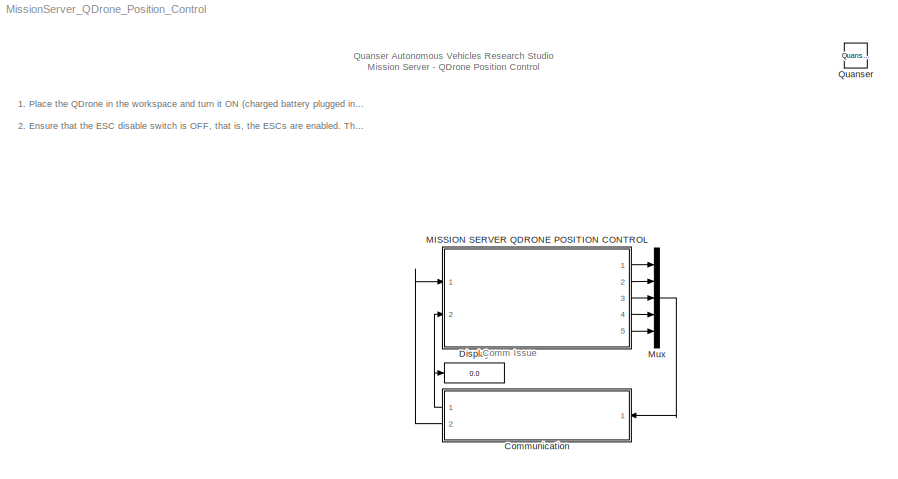
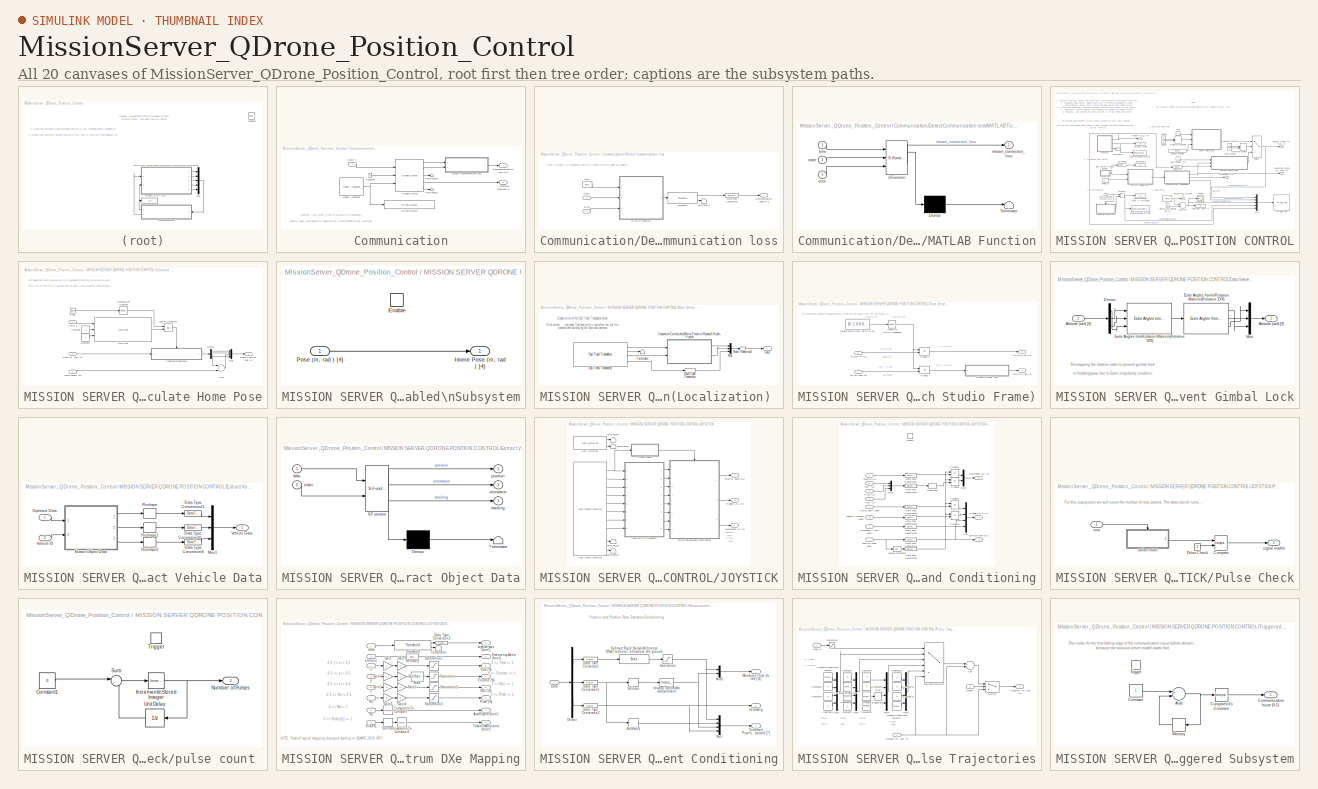
[diagram: thumbnail index - all 20 canvases of the model, root first then tree order]
MODEL MissionServer_QDrone_Position_Control
KIND model
CONFIG InitFcn = set_param('MissionServer_QDrone_Position_Control/MISSION SERVER QDRONE POSITION CONTROL/Trajectory Enable', 'sw', '0' )\nset_param('MissionServer_QDrone_Position_Control/MISSION SERVER QDRONE POSITION CONTROL/Command Enable', 'sw', '0' )
BLOCK [SubSystem] Communication
  Ports = [1, 2]
  RequestExecContextInheritance = off
  SID = 3974
BLOCK [Outport] Communication/Communication\nIssue (0,1)
  IconDisplay = Port number
  SID = 4276
BLOCK [Constant] Communication/Constant
  SID = 3844
BLOCK [Inport] Communication/Data In
  IconDisplay = Port number
  SID = 3975
BLOCK [SubSystem] Communication/Detect Communication loss
  Ports = [2, 1]
  RequestExecContextInheritance = off
  SID = 3979
BLOCK [Outport] Communication/Detect Communication loss/Communication Issue (0,1)
  IconDisplay = Port number
  SID = 3987
BLOCK [DataTypeConversion] Communication/Detect Communication loss/Data Type Conversion
  RndMeth = Floor
  SID = 3982
  SaturateOnIntegerOverflow = off
BLOCK [Inport] Communication/Detect Communication loss/Error
  IconDisplay = Port number
  Port = 2
  SID = 3981
BLOCK [SubSystem] Communication/Detect Communication loss/MATLAB Function
  ErrorFcn = Stateflow.Translate.translate
  PermitHierarchicalResolution = ExplicitOnly
  Ports = [3, 1]
  RequestExecContextInheritance = off
  SFBlockType = MATLAB Function
  SID = 3983
  TreatAsAtomicUnit = on
BLOCK [Demux] Communication/Detect Communication loss/MATLAB Function/ Demux 
  DisplayOption = bar
  Outputs = 1
  Ports = [1, 1]
  SID = 3983::89
BLOCK [S-Function] Communication/Detect Communication loss/MATLAB Function/ SFunction 
  EnableBusSupport = off
  FunctionName = sf_sfun
  PortCounts = [3 2]
  Ports = [3, 2]
  SFcnIsStateOwnerBlock = off
  SFunctionDeploymentMode = off
  SID = 3983::88
  Tag = Stateflow S-Function MissionServer_QDrone_Position_Control 3
BLOCK [Terminator] Communication/Detect Communication loss/MATLAB Function/ Terminator 
  SID = 3983::90
BLOCK [Inport] Communication/Detect Communication loss/MATLAB Function/error
  IconDisplay = Port number
  Port = 3
  SID = 3983::23
BLOCK [Inport] Communication/Detect Communication loss/MATLAB Function/state
  IconDisplay = Port number
  Port = 2
  SID = 3983::22
BLOCK [Outport] Communication/Detect Communication loss/MATLAB Function/stream_connection_loss
  IconDisplay = Port number
  SID = 3983::5
BLOCK [Inport] Communication/Detect Communication loss/MATLAB Function/time
  IconDisplay = Port number
  SID = 3983::1
BLOCK [Inport] Communication/Detect Communication loss/State
  IconDisplay = Port number
  SID = 3980
BLOCK [Terminator] Communication/Detect Communication loss/Terminator2
  SID = 3984
BLOCK [Reference] Communication/Detect Communication loss/Threshold  REF=quarc_library/Discontinuities/Threshold
  Ports = [1, 2]
  SID = 3985
  SourceBlock = quarc_library/Discontinuities/Threshold
  SourceProductName = QUARC Targets
  SourceType = Threshold
  duration = 0.1
  operator = >=
  param_src = Specify via dialog
  threshold = 0.5
BLOCK [Reference] Communication/Detect Communication loss/Time  REF=quarc_library/Sources/Time/Time
  MultiThreadCoSim = auto
  Ports = [0, 1]
  SID = 3986
  SourceBlock = quarc_library/Sources/Time/Time
  SourceProductName = QUARC Targets
  SourceType = Time
  sample_time = qc_get_step_size
  time_source = Wall clock
BLOCK [Reference] Communication/Model Argument  REF=quarc_library/Sources/Signals/Model Argument
  AttributesFormatString = (-%<argument_name>)
  MultiThreadCoSim = auto
  Ports = [0, 1]
  SID = 3845
  SourceBlock = quarc_library/Sources/Signals/Model Argument
  SourceProductName = QUARC Targets
  SourceType = Model Argument
  argument_name = URI_Host
  data_type = char
  data_type_mode = Specify via dialog
  default_value = 0
  has_value = on
  max_length = 80
  variable_size = off
BLOCK [Reference] Communication/Stream Server  REF=quarc_library/Communications/Basic/Stream Server
  MultiThreadCoSim = auto
  Ports = [3, 5]
  SID = 3861
  SourceBlock = quarc_library/Communications/Basic/Stream Server
  SourceProductName = QUARC Targets
  SourceType = Stream Server
  active = off
  apply_uri_to_all_configs = off
  byte_order = little endian (Intel - LSB first)
  data_type = Inherited via back propagation
  default_value = zeros(1,1)
  implementation = Use blocking I/O in a separate thread
  max_dimensions = -1
  optimization = Minimum latency
  receive_buffer_size = 1460
  receive_dimensions = off
  receive_fifo_size = 1000
  receive_options = Receive most recent data
  receive_priority = 0
  sample_time = qc_get_step_size
  send_buffer_size = 1460
  send_dimensions = off
  send_fifo_size = 1000
  send_options = Send most recent data
  send_priority = 0
  type_expr = BusObject
  uri = tcpip://localhost:18877
  uri_source = External input port
BLOCK [Reference] Communication/String Display   REF=quarc_library/Strings/String Display
  MultiThreadCoSim = auto
  Ports = [1]
  SID = 3862
  SourceBlock = quarc_library/Strings/String Display
  SourceProductName = QUARC Targets
  SourceType = String Display
  alignment = center
  display_mode = Single line
  sample_time = -1
  use_new = off
BLOCK [Terminator] Communication/Terminator1
  SID = 3863
BLOCK [Terminator] Communication/Terminator2
  SID = 3864
BLOCK [Outport] Communication/Timestamp Received (s)
  IconDisplay = Port number
  Port = 2
  SID = 3978
BLOCK [Display] Display
  Decimation = 1
  Ports = [1]
  SID = 4490
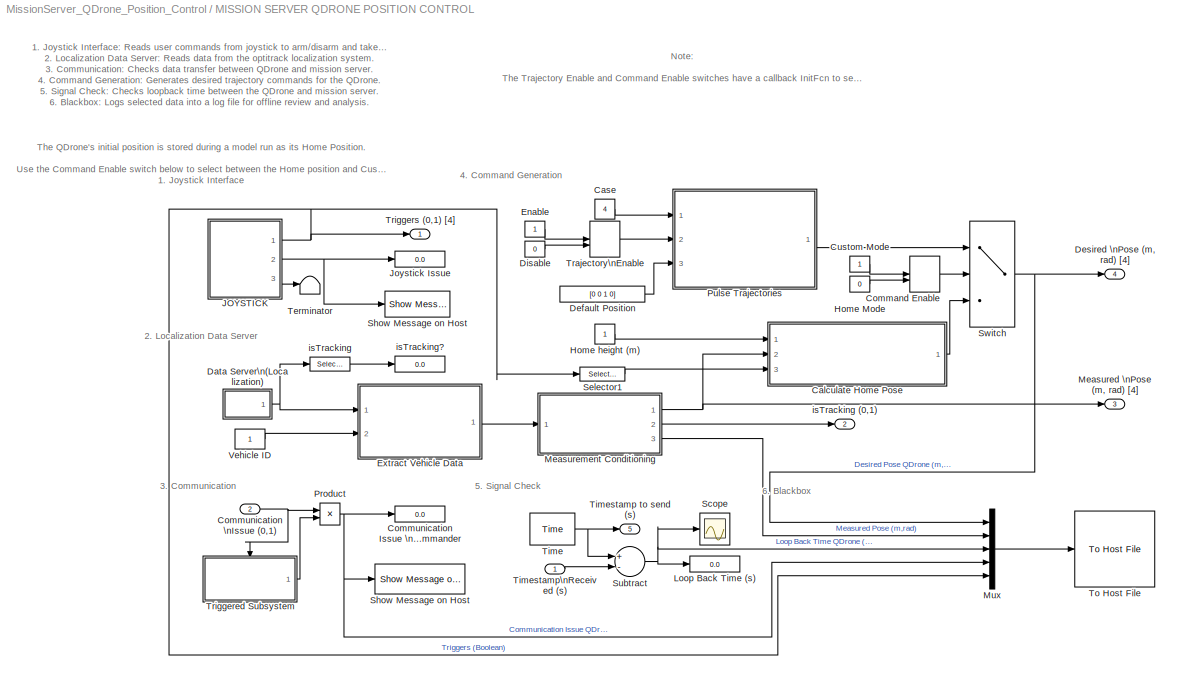
BLOCK [SubSystem] MISSION SERVER QDRONE POSITION CONTROL
  Ports = [2, 5]
  RequestExecContextInheritance = off
  SID = 4279
BLOCK [SubSystem] MISSION SERVER QDRONE POSITION CONTROL/Calculate Home Pose
  Ports = [3, 1]
  RequestExecContextInheritance = off
  SID = 4762
BLOCK [Inport] MISSION SERVER QDRONE POSITION CONTROL/Calculate Home Pose/Arm(0,1)
  IconDisplay = Port number
  Port = 3
  SID = 4765
BLOCK [Clock] MISSION SERVER QDRONE POSITION CONTROL/Calculate Home Pose/Clock
  SID = 4766
BLOCK [Reference] MISSION SERVER QDRONE POSITION CONTROL/Calculate Home Pose/Compare\nTo Constant  REF=simulink/Logic and Bit\nOperations/Compare\nTo Constant
  OutDataTypeStr = boolean
  Ports = [1, 1]
  SID = 4767
  SourceBlock = simulink/Logic and Bit\nOperations/Compare\nTo Constant
  SourceProductBaseCode = SL
  SourceType = Compare To Constant
  ZeroCross = on
  const = 5
  relop = >
BLOCK [Constant] MISSION SERVER QDRONE POSITION CONTROL/Calculate Home Pose/Constant
  SID = 4768
  Value = 0
BLOCK [Constant] MISSION SERVER QDRONE POSITION CONTROL/Calculate Home Pose/Constant1
  SID = 4769
BLOCK [Demux] MISSION SERVER QDRONE POSITION CONTROL/Calculate Home Pose/Demux
  DisplayOption = bar
  Ports = [1, 4]
  SID = 4770
BLOCK [SubSystem] MISSION SERVER QDRONE POSITION CONTROL/Calculate Home Pose/Enabled\nSubsystem
  Ports = [1, 1, 1]
  RequestExecContextInheritance = off
  SID = 4771
  TreatAsAtomicUnit = on
BLOCK [EnablePort] MISSION SERVER QDRONE POSITION CONTROL/Calculate Home Pose/Enabled\nSubsystem/Enable
  Ports = []
  SID = 4773
BLOCK [Outport] MISSION SERVER QDRONE POSITION CONTROL/Calculate Home Pose/Enabled\nSubsystem/Home Pose (m, rad ) [4]
  IconDisplay = Port number
  SID = 4774
BLOCK [Inport] MISSION SERVER QDRONE POSITION CONTROL/Calculate Home Pose/Enabled\nSubsystem/Pose (m, rad ) [4] 
  IconDisplay = Port number
  SID = 4772
BLOCK [Outport] MISSION SERVER QDRONE POSITION CONTROL/Calculate Home Pose/Home Pose (m, rad) [4]
  IconDisplay = Port number
  SID = 4779
BLOCK [Inport] MISSION SERVER QDRONE POSITION CONTROL/Calculate Home Pose/Home height (m)
  IconDisplay = Port number
  SID = 4763
BLOCK [Logic] MISSION SERVER QDRONE POSITION CONTROL/Calculate Home Pose/Logical\nOperator
  AllPortsSameDT = off
  OutDataTypeStr = boolean
  Ports = [2, 1]
  SID = 4775
BLOCK [Mux] MISSION SERVER QDRONE POSITION CONTROL/Calculate Home Pose/Mux
  DisplayOption = bar
  Ports = [4, 1]
  SID = 4776
BLOCK [Reference] MISSION SERVER QDRONE POSITION CONTROL/Calculate Home Pose/One Shot  REF=quarc_library/Discontinuities/One Shot
  Ports = [3, 1]
  SID = 4777
  SourceBlock = quarc_library/Discontinuities/One Shot
  SourceProductName = QUARC Targets
  SourceType = One Shot
  pulse_width = 1/qc_get_step_size
  redun_pulse = Ignore extraneous pulse
  trigger_type = Rising edge
  width_source = Specify via dialog
BLOCK [Inport] MISSION SERVER QDRONE POSITION CONTROL/Calculate Home Pose/Pose (m, rad ) [4]
  IconDisplay = Port number
  Port = 2
  SID = 4764
BLOCK [Sum] MISSION SERVER QDRONE POSITION CONTROL/Calculate Home Pose/Sum
  InputSameDT = off
  OutDataTypeStr = Inherit: Inherit via internal rule
  Ports = [2, 1]
  SID = 4778
  SaturateOnIntegerOverflow = off
BLOCK [Constant] MISSION SERVER QDRONE POSITION CONTROL/Case
  SID = 4679
  Value = 4
BLOCK [ManualSwitch] MISSION SERVER QDRONE POSITION CONTROL/Command Enable
  CurrentSetting = 0
  SID = 4497
BLOCK [Display] MISSION SERVER QDRONE POSITION CONTROL/Communication Issue \nwith Commander
  Decimation = 1
  Ports = [1]
  SID = 4298
BLOCK [Inport] MISSION SERVER QDRONE POSITION CONTROL/Communication \nIssue (0,1)
  IconDisplay = Port number
  Port = 2
  SID = 4281
BLOCK [Constant] MISSION SERVER QDRONE POSITION CONTROL/Custom Mode
  SID = 4496
BLOCK [SubSystem] MISSION SERVER QDRONE POSITION CONTROL/Data Server\n(Localization) 
  Ports = [0, 1]
  RequestExecContextInheritance = off
  SID = 4299
BLOCK [SubSystem] MISSION SERVER QDRONE POSITION CONTROL/Data Server\n(Localization) /Convention Correction\n(Motive Frame to Research Studio Frame)
  Ports = [2, 2]
  RequestExecContextInheritance = off
  SID = 4300
BLOCK [Math] MISSION SERVER QDRONE POSITION CONTROL/Data Server\n(Localization) /Convention Correction\n(Motive Frame to Research Studio Frame)/Inverse of \nOrthonormal \nMatrix\nis its \nTranspose
  Operator = transpose
  Ports = [1, 1]
  SID = 4303
BLOCK [SubSystem] MISSION SERVER QDRONE POSITION CONTROL/Data Server\n(Localization) /Convention Correction\n(Motive Frame to Research Studio Frame)/Prevent Gimbal Lock
  Ports = [1, 1]
  RequestExecContextInheritance = off
  SID = 4304
BLOCK [Inport] MISSION SERVER QDRONE POSITION CONTROL/Data Server\n(Localization) /Convention Correction\n(Motive Frame to Research Studio Frame)/Prevent Gimbal Lock/Attitude (rad) [3]
  IconDisplay = Port number
  SID = 4305
BLOCK [Outport] MISSION SERVER QDRONE POSITION CONTROL/Data Server\n(Localization) /Convention Correction\n(Motive Frame to Research Studio Frame)/Prevent Gimbal Lock/Attitude (rad) [3] 
  IconDisplay = Port number
  SID = 4310
BLOCK [Demux] MISSION SERVER QDRONE POSITION CONTROL/Data Server\n(Localization) /Convention Correction\n(Motive Frame to Research Studio Frame)/Prevent Gimbal Lock/Demux
  DisplayOption = bar
  Outputs = 3
  Ports = [1, 3]
  SID = 4306
BLOCK [Reference] MISSION SERVER QDRONE POSITION CONTROL/Data Server\n(Localization) /Convention Correction\n(Motive Frame to Research Studio Frame)/Prevent Gimbal Lock/Euler Angles from\nRotation Matrix\n(Relative ZYX)  REF=quarc_library/Math Operations/Matrices/Euler Angles from\nRotation Matrix
  MultiThreadCoSim = auto
  Ports = [1, 3]
  SID = 4307
  SourceBlock = quarc_library/Math Operations/Matrices/Euler Angles from\nRotation Matrix
  SourceProductName = QUARC Targets
  SourceType = Euler Angles from Rotation Matrix
  menu_order = Relative Z-Y-X
BLOCK [Reference] MISSION SERVER QDRONE POSITION CONTROL/Data Server\n(Localization) /Convention Correction\n(Motive Frame to Research Studio Frame)/Prevent Gimbal Lock/Euler Angles to\nRotation Matrix\n(Relative YZX)  REF=quarc_library/Math Operations/Matrices/Euler Angles to\nRotation Matrix
  MultiThreadCoSim = auto
  Ports = [3, 1]
  SID = 4308
  SourceBlock = quarc_library/Math Operations/Matrices/Euler Angles to\nRotation Matrix
  SourceProductName = QUARC Targets
  SourceType = Euler Angles to Rotation Matrix
  menu_order = Relative Y-Z-X
BLOCK [Mux] MISSION SERVER QDRONE POSITION CONTROL/Data Server\n(Localization) /Convention Correction\n(Motive Frame to Research Studio Frame)/Prevent Gimbal Lock/Mux
  DisplayOption = bar
  Inputs = 3
  Ports = [3, 1]
  SID = 4309
BLOCK [Product] MISSION SERVER QDRONE POSITION CONTROL/Data Server\n(Localization) /Convention Correction\n(Motive Frame to Research Studio Frame)/Product
  InputSameDT = off
  Multiplication = Matrix(*)
  OutDataTypeStr = Inherit: Inherit via internal rule
  Ports = [2, 1]
  RndMeth = Floor
  SID = 4312
  SaturateOnIntegerOverflow = off
BLOCK [Product] MISSION SERVER QDRONE POSITION CONTROL/Data Server\n(Localization) /Convention Correction\n(Motive Frame to Research Studio Frame)/Product1
  InputSameDT = off
  Multiplication = Matrix(*)
  OutDataTypeStr = Inherit: Inherit via internal rule
  Ports = [2, 1]
  RndMeth = Floor
  SID = 4313
  SaturateOnIntegerOverflow = off
BLOCK [Constant] MISSION SERVER QDRONE POSITION CONTROL/Data Server\n(Localization) /Convention Correction\n(Motive Frame to Research Studio Frame)/Rotate Basis from \nRSF to MF
  SID = 4314
  Value = [0 -1 0;0 0 1;-1 0 0]
BLOCK [Inport] MISSION SERVER QDRONE POSITION CONTROL/Data Server\n(Localization) /Convention Correction\n(Motive Frame to Research Studio Frame)/rot_MF (rad) [3]
  IconDisplay = Port number
  Port = 2
  SID = 4302
BLOCK [Outport] MISSION SERVER QDRONE POSITION CONTROL/Data Server\n(Localization) /Convention Correction\n(Motive Frame to Research Studio Frame)/rot_RSF (rad) [3]
  IconDisplay = Port number
  Port = 2
  SID = 4316
BLOCK [Inport] MISSION SERVER QDRONE POSITION CONTROL/Data Server\n(Localization) /Convention Correction\n(Motive Frame to Research Studio Frame)/xyz_MF (m) [3]
  IconDisplay = Port number
  SID = 4301
BLOCK [Outport] MISSION SERVER QDRONE POSITION CONTROL/Data Server\n(Localization) /Convention Correction\n(Motive Frame to Research Studio Frame)/xyz_RSF (m) [3]
  IconDisplay = Port number
  SID = 4315
BLOCK [Outport] MISSION SERVER QDRONE POSITION CONTROL/Data Server\n(Localization) /Data
  IconDisplay = Port number
  SID = 4330
BLOCK [DataTypeConversion] MISSION SERVER QDRONE POSITION CONTROL/Data Server\n(Localization) /Data Type Conversion
  RndMeth = Floor
  SID = 4326
  SaturateOnIntegerOverflow = off
BLOCK [Mux] MISSION SERVER QDRONE POSITION CONTROL/Data Server\n(Localization) /Mux
  DisplayOption = bar
  Inputs = 3
  Ports = [3, 1]
  SID = 4327
BLOCK [Reference] MISSION SERVER QDRONE POSITION CONTROL/Data Server\n(Localization) /OptiTrack Trackables  REF=quarc_library/Devices/Third-Party/NaturalPoint/OptiTrack/OptiTrack Trackables
  MultiThreadCoSim = auto
  Ports = [0, 4]
  SID = 4328
  SourceBlock = quarc_library/Devices/Third-Party/NaturalPoint/OptiTrack/OptiTrack Trackables
  SourceProductName = QUARC Targets
  SourceType = OptiTrack Rigid Body Position
  active = off
  calibration_file = <userpath><path>
  rigid_body_file = <userpath><path>
  rigid_body_ids = [1]
  sample_time = qc_get_step_size*10
BLOCK [RateTransition] MISSION SERVER QDRONE POSITION CONTROL/Data Server\n(Localization) /Rate Transition2
  SID = 4494
BLOCK [Terminator] MISSION SERVER QDRONE POSITION CONTROL/Data Server\n(Localization) /Terminator
  SID = 4329
BLOCK [Constant] MISSION SERVER QDRONE POSITION CONTROL/Default Position
  SID = 4678
  Value = [0 0 1 0]
BLOCK [Outport] MISSION SERVER QDRONE POSITION CONTROL/Desired \nPose (m, rad) [4]
  IconDisplay = Port number
  Port = 4
  SID = 4480
BLOCK [Constant] MISSION SERVER QDRONE POSITION CONTROL/Disable
  SID = 4675
  Value = 0
BLOCK [Constant] MISSION SERVER QDRONE POSITION CONTROL/Enable
  SID = 4676
BLOCK [SubSystem] MISSION SERVER QDRONE POSITION CONTROL/Extract Vehicle Data
  Ports = [2, 1]
  RequestExecContextInheritance = off
  SID = 4333
BLOCK [DataTypeConversion] MISSION SERVER QDRONE POSITION CONTROL/Extract Vehicle Data/Data Type Conversion10
  RndMeth = Floor
  SID = 4336
  SaturateOnIntegerOverflow = off
BLOCK [DataTypeConversion] MISSION SERVER QDRONE POSITION CONTROL/Extract Vehicle Data/Data Type Conversion11
  RndMeth = Floor
  SID = 4337
  SaturateOnIntegerOverflow = off
BLOCK [DataTypeConversion] MISSION SERVER QDRONE POSITION CONTROL/Extract Vehicle Data/Data Type Conversion9
  RndMeth = Floor
  SID = 4338
  SaturateOnIntegerOverflow = off
BLOCK [SubSystem] MISSION SERVER QDRONE POSITION CONTROL/Extract Vehicle Data/Extract Object Data
  ErrorFcn = Stateflow.Translate.translate
  PermitHierarchicalResolution = ExplicitOnly
  Ports = [2, 3]
  RequestExecContextInheritance = off
  SFBlockType = MATLAB Function
  SID = 4339
  TreatAsAtomicUnit = on
BLOCK [Demux] MISSION SERVER QDRONE POSITION CONTROL/Extract Vehicle Data/Extract Object Data/ Demux 
  DisplayOption = bar
  Outputs = 1
  Ports = [1, 1]
  SID = 4339::86
BLOCK [S-Function] MISSION SERVER QDRONE POSITION CONTROL/Extract Vehicle Data/Extract Object Data/ SFunction 
  EnableBusSupport = off
  FunctionName = sf_sfun
  PortCounts = [2 4]
  Ports = [2, 4]
  SFcnIsStateOwnerBlock = off
  SFunctionDeploymentMode = off
  SID = 4339::85
  Tag = Stateflow S-Function MissionServer_QDrone_Position_Control 2
BLOCK [Terminator] MISSION SERVER QDRONE POSITION CONTROL/Extract Vehicle Data/Extract Object Data/ Terminator 
  SID = 4339::87
BLOCK [Inport] MISSION SERVER QDRONE POSITION CONTROL/Extract Vehicle Data/Extract Object Data/data
  IconDisplay = Port number
  SID = 4339::1
BLOCK [Inport] MISSION SERVER QDRONE POSITION CONTROL/Extract Vehicle Data/Extract Object Data/index
  IconDisplay = Port number
  Port = 2
  SID = 4339::19
BLOCK [Outport] MISSION SERVER QDRONE POSITION CONTROL/Extract Vehicle Data/Extract Object Data/orientation
  IconDisplay = Port number
  Port = 2
  SID = 4339::21
BLOCK [Outport] MISSION SERVER QDRONE POSITION CONTROL/Extract Vehicle Data/Extract Object Data/position
  IconDisplay = Port number
  SID = 4339::5
BLOCK [Outport] MISSION SERVER QDRONE POSITION CONTROL/Extract Vehicle Data/Extract Object Data/tracking
  IconDisplay = Port number
  Port = 3
  SID = 4339::20
BLOCK [Mux] MISSION SERVER QDRONE POSITION CONTROL/Extract Vehicle Data/Mux1
  DisplayOption = bar
  Inputs = 3
  Ports = [3, 1]
  SID = 4340
BLOCK [Inport] MISSION SERVER QDRONE POSITION CONTROL/Extract Vehicle Data/Optitrack Data
  IconDisplay = Port number
  SID = 4334
BLOCK [Reshape] MISSION SERVER QDRONE POSITION CONTROL/Extract Vehicle Data/Reshape
  Ports = [1, 1]
  SID = 4341
BLOCK [Reshape] MISSION SERVER QDRONE POSITION CONTROL/Extract Vehicle Data/Reshape1
  Ports = [1, 1]
  SID = 4342
BLOCK [Reshape] MISSION SERVER QDRONE POSITION CONTROL/Extract Vehicle Data/Reshape2
  Ports = [1, 1]
  SID = 4343
BLOCK [Outport] MISSION SERVER QDRONE POSITION CONTROL/Extract Vehicle Data/Vehicle Data
  IconDisplay = Port number
  SID = 4344
BLOCK [Inport] MISSION SERVER QDRONE POSITION CONTROL/Extract Vehicle Data/Vehicle ID
  IconDisplay = Port number
  Port = 2
  SID = 4335
BLOCK [Constant] MISSION SERVER QDRONE POSITION CONTROL/Home Mode
  SID = 4345
  Value = 0
BLOCK [Constant] MISSION SERVER QDRONE POSITION CONTROL/Home height (m)
  SID = 4346
BLOCK [SubSystem] MISSION SERVER QDRONE POSITION CONTROL/JOYSTICK
  Ports = [0, 3]
  RequestExecContextInheritance = off
  SID = 4817
BLOCK [Outport] MISSION SERVER QDRONE POSITION CONTROL/JOYSTICK/Commands (%) [4]
  IconDisplay = Port number
  Port = 3
  SID = 4916
BLOCK [Reference] MISSION SERVER QDRONE POSITION CONTROL/JOYSTICK/Host Game Controller  REF=quarc_library/Devices/Peripherals/Host/Host Game Controller
  MultiThreadCoSim = auto
  Ports = [0, 10]
  SID = 4818
  SourceBlock = quarc_library/Devices/Peripherals/Host/Host Game Controller
  SourceProductName = QUARC Targets
  SourceType = Host Game Controller
  auto_center = off
  buffer_size = 20
  controller = 1
  deadzone = []
  debug_mode = off
  enabled = on
  object_name = Host-1
  sample_time = qc_get_step_size
  saturation = []
BLOCK [Reference] MISSION SERVER QDRONE POSITION CONTROL/JOYSTICK/Host Initialize  REF=quarc_library/Devices/Peripherals/Host/Host Initialize
  MultiThreadCoSim = auto
  Ports = [0, 2]
  SID = 4819
  SourceBlock = quarc_library/Devices/Peripherals/Host/Host Initialize
  SourceProductName = QUARC Targets
  SourceType = Host Initialize
  active = on
  apply_uri_to_all_configs = on
  object_name = Host-1
  receive_buffer_size = 1000
  run_client = on
  sample_time = qc_get_step_size
  send_buffer_size = 1000
  thread_priority = 0
  uri = tcpip://localhost:18001
  uri_source = Use external mode communications
  use_window = off
  window_position = []
BLOCK [SubSystem] MISSION SERVER QDRONE POSITION CONTROL/JOYSTICK/Initialization\nand Conditioning
  Ports = [8, 3, 1]
  RequestExecContextInheritance = off
  SID = 4820
  TreatAsAtomicUnit = on
BLOCK [Inport] MISSION SERVER QDRONE POSITION CONTROL/JOYSTICK/Initialization\nand Conditioning/Arm//Disarm (bool)
  IconDisplay = Port number
  Port = 7
  SID = 4827
BLOCK [Outport] MISSION SERVER QDRONE POSITION CONTROL/JOYSTICK/Initialization\nand Conditioning/Commands (%) [4]
  IconDisplay = Port number
  InitialOutput = 0
  Port = 3
  SID = 4848
BLOCK [DataTypeConversion] MISSION SERVER QDRONE POSITION CONTROL/JOYSTICK/Initialization\nand Conditioning/Data Type Conversion1
  RndMeth = Floor
  SID = 4830
  SaturateOnIntegerOverflow = off
BLOCK [DataTypeConversion] MISSION SERVER QDRONE POSITION CONTROL/JOYSTICK/Initialization\nand Conditioning/Data Type Conversion2
  RndMeth = Floor
  SID = 4831
  SaturateOnIntegerOverflow = off
BLOCK [DataTypeConversion] MISSION SERVER QDRONE POSITION CONTROL/JOYSTICK/Initialization\nand Conditioning/Data Type Conversion3
  RndMeth = Floor
  SID = 4832
  SaturateOnIntegerOverflow = off
BLOCK [DataTypeConversion] MISSION SERVER QDRONE POSITION CONTROL/JOYSTICK/Initialization\nand Conditioning/Data Type Conversion4
  RndMeth = Floor
  SID = 4833
  SaturateOnIntegerOverflow = off
BLOCK [DataTypeConversion] MISSION SERVER QDRONE POSITION CONTROL/JOYSTICK/Initialization\nand Conditioning/Data Type Conversion5
  RndMeth = Floor
  SID = 4834
  SaturateOnIntegerOverflow = off
BLOCK [DataTypeConversion] MISSION SERVER QDRONE POSITION CONTROL/JOYSTICK/Initialization\nand Conditioning/Data Type Conversion6
  RndMeth = Floor
  SID = 4835
  SaturateOnIntegerOverflow = off
BLOCK [DataTypeConversion] MISSION SERVER QDRONE POSITION CONTROL/JOYSTICK/Initialization\nand Conditioning/Data Type Conversion7
  RndMeth = Floor
  SID = 4836
  SaturateOnIntegerOverflow = off
BLOCK [DeadZone] MISSION SERVER QDRONE POSITION CONTROL/JOYSTICK/Initialization\nand Conditioning/Dead Zone
  LowerValue = -0.01
  SID = 4837
  UpperValue = 0.01
BLOCK [Inport] MISSION SERVER QDRONE POSITION CONTROL/JOYSTICK/Initialization\nand Conditioning/Emergency Abort (bool)
  IconDisplay = Port number
  Port = 2
  SID = 4822
BLOCK [EnablePort] MISSION SERVER QDRONE POSITION CONTROL/JOYSTICK/Initialization\nand Conditioning/Enable
  Ports = []
  SID = 4829
  StatesWhenEnabling = reset
BLOCK [Outport] MISSION SERVER QDRONE POSITION CONTROL/JOYSTICK/Initialization\nand Conditioning/Joystick Issue (0,1)
  IconDisplay = Port number
  InitialOutput = 0
  SID = 4846
BLOCK [Inport] MISSION SERVER QDRONE POSITION CONTROL/JOYSTICK/Initialization\nand Conditioning/Joystick Issue (bool)
  IconDisplay = Port number
  SID = 4821
BLOCK [Logic] MISSION SERVER QDRONE POSITION CONTROL/JOYSTICK/Initialization\nand Conditioning/Logical\nOperator
  AllPortsSameDT = off
  Operator = NOT
  OutDataTypeStr = boolean
  Ports = [1, 1]
  SID = 4838
BLOCK [Mux] MISSION SERVER QDRONE POSITION CONTROL/JOYSTICK/Initialization\nand Conditioning/Mux
  DisplayOption = bar
  Ports = [4, 1]
  SID = 4839
BLOCK [Mux] MISSION SERVER QDRONE POSITION CONTROL/JOYSTICK/Initialization\nand Conditioning/Mux1
  DisplayOption = bar
  Inputs = 3
  Ports = [3, 1]
  SID = 4840
BLOCK [Mux] MISSION SERVER QDRONE POSITION CONTROL/JOYSTICK/Initialization\nand Conditioning/Mux2
  DisplayOption = bar
  Inputs = 2
  Ports = [2, 1]
  SID = 4841
BLOCK [Inport] MISSION SERVER QDRONE POSITION CONTROL/JOYSTICK/Initialization\nand Conditioning/Pitch (%)
  IconDisplay = Port number
  Port = 6
  SID = 4826
BLOCK [Product] MISSION SERVER QDRONE POSITION CONTROL/JOYSTICK/Initialization\nand Conditioning/Product
  InputSameDT = off
  OutDataTypeStr = Inherit: Inherit via internal rule
  Ports = [2, 1]
  RndMeth = Floor
  SID = 4842
  SaturateOnIntegerOverflow = off
BLOCK [Product] MISSION SERVER QDRONE POSITION CONTROL/JOYSTICK/Initialization\nand Conditioning/Product1
  InputSameDT = off
  OutDataTypeStr = Inherit: Inherit via internal rule
  Ports = [2, 1]
  RndMeth = Floor
  SID = 4843
  SaturateOnIntegerOverflow = off
BLOCK [Product] MISSION SERVER QDRONE POSITION CONTROL/JOYSTICK/Initialization\nand Conditioning/Product2
  InputSameDT = off
  OutDataTypeStr = Inherit: Inherit via internal rule
  Ports = [2, 1]
  RndMeth = Floor
  SID = 4844
  SaturateOnIntegerOverflow = off
BLOCK [Product] MISSION SERVER QDRONE POSITION CONTROL/JOYSTICK/Initialization\nand Conditioning/Product3
  InputSameDT = off
  OutDataTypeStr = Inherit: Inherit via internal rule
  Ports = [2, 1]
  RndMeth = Floor
  SID = 4845
  SaturateOnIntegerOverflow = off
BLOCK [Inport] MISSION SERVER QDRONE POSITION CONTROL/JOYSTICK/Initialization\nand Conditioning/Roll (%)
  IconDisplay = Port number
  Port = 5
  SID = 4825
BLOCK [Inport] MISSION SERVER QDRONE POSITION CONTROL/JOYSTICK/Initialization\nand Conditioning/Takeoff//AutoLand (bool)
  IconDisplay = Port number
  Port = 8
  SID = 4828
BLOCK [Inport] MISSION SERVER QDRONE POSITION CONTROL/JOYSTICK/Initialization\nand Conditioning/Throttle (%)
  IconDisplay = Port number
  Port = 4
  SID = 4824
BLOCK [Outport] MISSION SERVER QDRONE POSITION CONTROL/JOYSTICK/Initialization\nand Conditioning/Triggers (0,1) [4]
  IconDisplay = Port number
  InitialOutput = 0
  Port = 2
  SID = 4847
BLOCK [Inport] MISSION SERVER QDRONE POSITION CONTROL/JOYSTICK/Initialization\nand Conditioning/Yaw (%)
  IconDisplay = Port number
  Port = 3
  SID = 4823
BLOCK [Outport] MISSION SERVER QDRONE POSITION CONTROL/JOYSTICK/Joystick Issue (0,1)
  IconDisplay = Port number
  Port = 2
  SID = 4915
BLOCK [SubSystem] MISSION SERVER QDRONE POSITION CONTROL/JOYSTICK/Pulse Check
  Ports = [1, 1]
  RequestExecContextInheritance = off
  SID = 4849
  TreatAsAtomicUnit = on
BLOCK [Reference] MISSION SERVER QDRONE POSITION CONTROL/JOYSTICK/Pulse Check/Compare  REF=quarc_library/Logic Operations/Compare
  MultiThreadCoSim = auto
  Ports = [2, 1]
  SID = 4851
  SourceBlock = quarc_library/Logic Operations/Compare
  SourceProductName = QUARC Targets
  SourceType = Compare
  operator = >
  output_data_type = boolean
BLOCK [Constant] MISSION SERVER QDRONE POSITION CONTROL/JOYSTICK/Pulse Check/Pulse Check
  SID = 4852
  Value = 2
BLOCK [Inport] MISSION SERVER QDRONE POSITION CONTROL/JOYSTICK/Pulse Check/new
  IconDisplay = Port number
  SID = 4850
BLOCK [SubSystem] MISSION SERVER QDRONE POSITION CONTROL/JOYSTICK/Pulse Check/pulse count 
  Ports = [0, 1, 0, 1]
  RequestExecContextInheritance = off
  SID = 4853
  TreatAsAtomicUnit = on
BLOCK [Constant] MISSION SERVER QDRONE POSITION CONTROL/JOYSTICK/Pulse Check/pulse count /Constant1
  SID = 4855
  Value = 0
BLOCK [Reference] MISSION SERVER QDRONE POSITION CONTROL/JOYSTICK/Pulse Check/pulse count /Increment\nStored Integer  REF=simulink/Additional Math\n& Discrete/Additional Math:\nIncrement - Decrement/Increment\nStored Integer
  Ports = [1, 1]
  SID = 4856
  SourceBlock = simulink/Additional Math\n& Discrete/Additional Math:\nIncrement - Decrement/Increment\nStored Integer
  SourceProductBaseCode = SL
  SourceType = Stored Integer Value Increment
BLOCK [Outport] MISSION SERVER QDRONE POSITION CONTROL/JOYSTICK/Pulse Check/pulse count /Number of Pulses
  IconDisplay = Port number
  SID = 4859
BLOCK [Sum] MISSION SERVER QDRONE POSITION CONTROL/JOYSTICK/Pulse Check/pulse count /Sum
  IconShape = round
  InputSameDT = off
  Inputs = |++
  OutDataTypeStr = Inherit: Inherit via internal rule
  Ports = [2, 1]
  SID = 4857
  SaturateOnIntegerOverflow = off
BLOCK [TriggerPort] MISSION SERVER QDRONE POSITION CONTROL/JOYSTICK/Pulse Check/pulse count /Trigger
  Ports = []
  SID = 4854
  StatesWhenEnabling = held
  VariantControl = Variant
BLOCK [UnitDelay] MISSION SERVER QDRONE POSITION CONTROL/JOYSTICK/Pulse Check/pulse count /Unit Delay
  InputProcessing = Elements as channels (sample based)
  SID = 4858
  SampleTime = -1
BLOCK [Outport] MISSION SERVER QDRONE POSITION CONTROL/JOYSTICK/Pulse Check/signal enable
  IconDisplay = Port number
  InitialOutput = 0
  SID = 4860
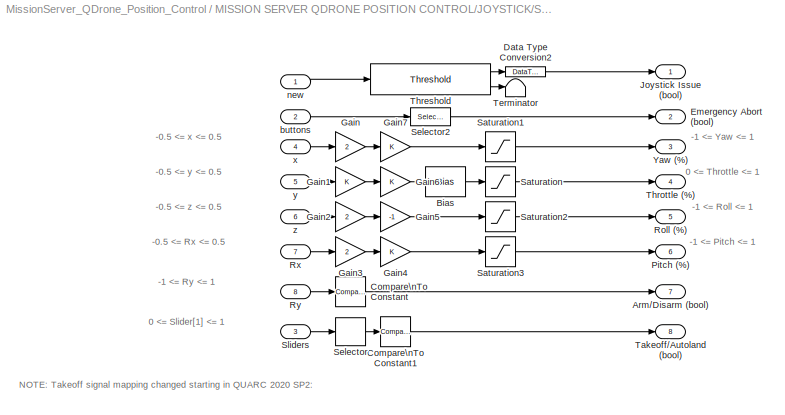
BLOCK [SubSystem] MISSION SERVER QDRONE POSITION CONTROL/JOYSTICK/Spectrum DXe Mapping
  Ports = [8, 8]
  RequestExecContextInheritance = off
  SID = 4862
BLOCK [Outport] MISSION SERVER QDRONE POSITION CONTROL/JOYSTICK/Spectrum DXe Mapping/Arm//Disarm (bool) 
  IconDisplay = Port number
  Port = 7
  SID = 4897
BLOCK [Bias] MISSION SERVER QDRONE POSITION CONTROL/JOYSTICK/Spectrum DXe Mapping/Bias
  Bias = 0.5
  SID = 4871
  SaturateOnIntegerOverflow = off
BLOCK [Reference] MISSION SERVER QDRONE POSITION CONTROL/JOYSTICK/Spectrum DXe Mapping/Compare\nTo Constant  REF=simulink/Logic and Bit\nOperations/Compare\nTo Constant
  OutDataTypeStr = boolean
  Ports = [1, 1]
  SID = 4872
  SourceBlock = simulink/Logic and Bit\nOperations/Compare\nTo Constant
  SourceProductBaseCode = SL
  SourceType = Compare To Constant
  ZeroCross = on
  const = 0
  relop = <=
BLOCK [Reference] MISSION SERVER QDRONE POSITION CONTROL/JOYSTICK/Spectrum DXe Mapping/Compare\nTo Constant1  REF=simulink/Logic and Bit\nOperations/Compare\nTo Constant
  OutDataTypeStr = boolean
  Ports = [1, 1]
  SID = 4873
  SourceBlock = simulink/Logic and Bit\nOperations/Compare\nTo Constant
  SourceProductBaseCode = SL
  SourceType = Compare To Constant
  ZeroCross = on
  const = 0.5
  relop = <=
BLOCK [DataTypeConversion] MISSION SERVER QDRONE POSITION CONTROL/JOYSTICK/Spectrum DXe Mapping/Data Type Conversion2
  RndMeth = Floor
  SID = 4874
  SaturateOnIntegerOverflow = off
BLOCK [Outport] MISSION SERVER QDRONE POSITION CONTROL/JOYSTICK/Spectrum DXe Mapping/Emergency Abort (bool)
  IconDisplay = Port number
  Port = 2
  SID = 4892
BLOCK [Gain] MISSION SERVER QDRONE POSITION CONTROL/JOYSTICK/Spectrum DXe Mapping/Gain
  Gain = 2
  OutDataTypeStr = Inherit: Inherit via internal rule
  ParamDataTypeStr = Inherit: Inherit via internal rule
  SID = 4875
  SaturateOnIntegerOverflow = off
BLOCK [Gain] MISSION SERVER QDRONE POSITION CONTROL/JOYSTICK/Spectrum DXe Mapping/Gain1
  OutDataTypeStr = Inherit: Inherit via internal rule
  ParamDataTypeStr = Inherit: Inherit via internal rule
  SID = 4876
  SaturateOnIntegerOverflow = off
BLOCK [Gain] MISSION SERVER QDRONE POSITION CONTROL/JOYSTICK/Spectrum DXe Mapping/Gain2
  Gain = 2
  OutDataTypeStr = Inherit: Inherit via internal rule
  ParamDataTypeStr = Inherit: Inherit via internal rule
  SID = 4877
  SaturateOnIntegerOverflow = off
BLOCK [Gain] MISSION SERVER QDRONE POSITION CONTROL/JOYSTICK/Spectrum DXe Mapping/Gain3
  Gain = 2
  OutDataTypeStr = Inherit: Inherit via internal rule
  ParamDataTypeStr = Inherit: Inherit via internal rule
  SID = 4878
  SaturateOnIntegerOverflow = off
BLOCK [Gain] MISSION SERVER QDRONE POSITION CONTROL/JOYSTICK/Spectrum DXe Mapping/Gain4
  OutDataTypeStr = Inherit: Inherit via internal rule
  ParamDataTypeStr = Inherit: Inherit via internal rule
  SID = 4879
  SaturateOnIntegerOverflow = off
BLOCK [Gain] MISSION SERVER QDRONE POSITION CONTROL/JOYSTICK/Spectrum DXe Mapping/Gain5
  Gain = -1
  OutDataTypeStr = Inherit: Inherit via internal rule
  ParamDataTypeStr = Inherit: Inherit via internal rule
  SID = 4880
  SaturateOnIntegerOverflow = off
BLOCK [Gain] MISSION SERVER QDRONE POSITION CONTROL/JOYSTICK/Spectrum DXe Mapping/Gain6
  OutDataTypeStr = Inherit: Inherit via internal rule
  ParamDataTypeStr = Inherit: Inherit via internal rule
  SID = 4881
  SaturateOnIntegerOverflow = off
BLOCK [Gain] MISSION SERVER QDRONE POSITION CONTROL/JOYSTICK/Spectrum DXe Mapping/Gain7
  OutDataTypeStr = Inherit: Inherit via internal rule
  ParamDataTypeStr = Inherit: Inherit via internal rule
  SID = 4882
  SaturateOnIntegerOverflow = off
BLOCK [Outport] MISSION SERVER QDRONE POSITION CONTROL/JOYSTICK/Spectrum DXe Mapping/Joystick Issue (bool)
  IconDisplay = Port number
  SID = 4891
BLOCK [Outport] MISSION SERVER QDRONE POSITION CONTROL/JOYSTICK/Spectrum DXe Mapping/Pitch (%)
  IconDisplay = Port number
  Port = 6
  SID = 4896
BLOCK [Outport] MISSION SERVER QDRONE POSITION CONTROL/JOYSTICK/Spectrum DXe Mapping/Roll (%)
  IconDisplay = Port number
  Port = 5
  SID = 4895
BLOCK [Inport] MISSION SERVER QDRONE POSITION CONTROL/JOYSTICK/Spectrum DXe Mapping/Rx
  IconDisplay = Port number
  Port = 7
  SID = 4869
BLOCK [Inport] MISSION SERVER QDRONE POSITION CONTROL/JOYSTICK/Spectrum DXe Mapping/Ry
  IconDisplay = Port number
  Port = 8
  SID = 4870
BLOCK [Saturate] MISSION SERVER QDRONE POSITION CONTROL/JOYSTICK/Spectrum DXe Mapping/Saturation
  InputPortMap = u0
  LowerLimit = 0
  Ports = [1, 1]
  SID = 4883
  UpperLimit = 1
BLOCK [Saturate] MISSION SERVER QDRONE POSITION CONTROL/JOYSTICK/Spectrum DXe Mapping/Saturation1
  InputPortMap = u0
  LowerLimit = -1
  Ports = [1, 1]
  SID = 4884
  UpperLimit = 1
BLOCK [Saturate] MISSION SERVER QDRONE POSITION CONTROL/JOYSTICK/Spectrum DXe Mapping/Saturation2
  InputPortMap = u0
  LowerLimit = -1
  Ports = [1, 1]
  SID = 4885
  UpperLimit = 1
BLOCK [Saturate] MISSION SERVER QDRONE POSITION CONTROL/JOYSTICK/Spectrum DXe Mapping/Saturation3
  InputPortMap = u0
  LowerLimit = -1
  Ports = [1, 1]
  SID = 4886
  UpperLimit = 1
BLOCK [Selector] MISSION SERVER QDRONE POSITION CONTROL/JOYSTICK/Spectrum DXe Mapping/Selector
  IndexOptions = Index vector (dialog)
  Indices = [2]
  InputPortWidth = 2
  OutputSizes = 1
  Ports = [1, 1]
  SID = 4887
BLOCK [Selector] MISSION SERVER QDRONE POSITION CONTROL/JOYSTICK/Spectrum DXe Mapping/Selector2
  IndexOptions = Index vector (dialog)
  Indices = [1]
  InputPortWidth = 32
  OutputSizes = 1
  Ports = [1, 1]
  SID = 4888
BLOCK [Inport] MISSION SERVER QDRONE POSITION CONTROL/JOYSTICK/Spectrum DXe Mapping/Sliders
  IconDisplay = Port number
  Port = 3
  SID = 4865
BLOCK [Outport] MISSION SERVER QDRONE POSITION CONTROL/JOYSTICK/Spectrum DXe Mapping/Takeoff//Autoland (bool)
  IconDisplay = Port number
  Port = 8
  SID = 4898
BLOCK [Terminator] MISSION SERVER QDRONE POSITION CONTROL/JOYSTICK/Spectrum DXe Mapping/Terminator
  SID = 4889
BLOCK [Reference] MISSION SERVER QDRONE POSITION CONTROL/JOYSTICK/Spectrum DXe Mapping/Threshold  REF=quarc_library/Discontinuities/Threshold
  Ports = [1, 2]
  SID = 4890
  SourceBlock = quarc_library/Discontinuities/Threshold
  SourceProductName = QUARC Targets
  SourceType = Threshold
  duration = 1
  operator = ==
  param_src = Specify via dialog
  threshold = 0
BLOCK [Outport] MISSION SERVER QDRONE POSITION CONTROL/JOYSTICK/Spectrum DXe Mapping/Throttle (%)
  IconDisplay = Port number
  Port = 4
  SID = 4894
BLOCK [Outport] MISSION SERVER QDRONE POSITION CONTROL/JOYSTICK/Spectrum DXe Mapping/Yaw (%)
  IconDisplay = Port number
  Port = 3
  SID = 4893
BLOCK [Inport] MISSION SERVER QDRONE POSITION CONTROL/JOYSTICK/Spectrum DXe Mapping/buttons
  IconDisplay = Port number
  Port = 2
  SID = 4864
BLOCK [Inport] MISSION SERVER QDRONE POSITION CONTROL/JOYSTICK/Spectrum DXe Mapping/new
  IconDisplay = Port number
  SID = 4863
BLOCK [Inport] MISSION SERVER QDRONE POSITION CONTROL/JOYSTICK/Spectrum DXe Mapping/x
  IconDisplay = Port number
  Port = 4
  SID = 4866
BLOCK [Inport] MISSION SERVER QDRONE POSITION CONTROL/JOYSTICK/Spectrum DXe Mapping/y
  IconDisplay = Port number
  Port = 5
  SID = 4867
BLOCK [Inport] MISSION SERVER QDRONE POSITION CONTROL/JOYSTICK/Spectrum DXe Mapping/z
  IconDisplay = Port number
  Port = 6
  SID = 4868
BLOCK [Terminator] MISSION SERVER QDRONE POSITION CONTROL/JOYSTICK/Terminator1
  SID = 4910
BLOCK [Terminator] MISSION SERVER QDRONE POSITION CONTROL/JOYSTICK/Terminator2
  SID = 4911
BLOCK [Terminator] MISSION SERVER QDRONE POSITION CONTROL/JOYSTICK/Terminator3
  SID = 4912
BLOCK [Terminator] MISSION SERVER QDRONE POSITION CONTROL/JOYSTICK/Terminator4
  SID = 4913
BLOCK [Outport] MISSION SERVER QDRONE POSITION CONTROL/JOYSTICK/Triggers (0,1) [4]
  IconDisplay = Port number
  SID = 4914
BLOCK [Display] MISSION SERVER QDRONE POSITION CONTROL/Joystick Issue
  Decimation = 1
  Ports = [1]
  SID = 4437
BLOCK [Display] MISSION SERVER QDRONE POSITION CONTROL/Loop Back Time (s)
  Decimation = 1
  Ports = [1]
  SID = 4438
BLOCK [Outport] MISSION SERVER QDRONE POSITION CONTROL/Measured \nPose (m, rad) [4]
  IconDisplay = Port number
  Port = 3
  SID = 4477
BLOCK [SubSystem] MISSION SERVER QDRONE POSITION CONTROL/Measurement Conditioning
  Ports = [1, 3]
  RequestExecContextInheritance = off
  SID = 4800
BLOCK [Outport] MISSION SERVER QDRONE POSITION CONTROL/Measurement Conditioning/Corrected Pose\nData (m,rad) [7]
  IconDisplay = Port number
  Port = 3
  SID = 4815
BLOCK [Inport] MISSION SERVER QDRONE POSITION CONTROL/Measurement Conditioning/Data
  IconDisplay = Port number
  SID = 4801
BLOCK [DataTypeConversion] MISSION SERVER QDRONE POSITION CONTROL/Measurement Conditioning/Data Type Conversion
  RndMeth = Floor
  SID = 4802
  SaturateOnIntegerOverflow = off
BLOCK [DataTypeConversion] MISSION SERVER QDRONE POSITION CONTROL/Measurement Conditioning/Data Type Conversion1
  RndMeth = Floor
  SID = 4803
  SaturateOnIntegerOverflow = off
BLOCK [DataTypeConversion] MISSION SERVER QDRONE POSITION CONTROL/Measurement Conditioning/Data Type Conversion2
  RndMeth = Floor
  SID = 4804
  SaturateOnIntegerOverflow = off
BLOCK [Demux] MISSION SERVER QDRONE POSITION CONTROL/Measurement Conditioning/Demux
  DisplayOption = bar
  Outputs = [3 3 1]
  Ports = [1, 3]
  SID = 4805
BLOCK [Outport] MISSION SERVER QDRONE POSITION CONTROL/Measurement Conditioning/Measured Pose (m, rad) [4]
  IconDisplay = Port number
  SID = 4813
BLOCK [Mux] MISSION SERVER QDRONE POSITION CONTROL/Measurement Conditioning/Mux
  DisplayOption = bar
  Ports = [4, 1]
  SID = 4806
BLOCK [Mux] MISSION SERVER QDRONE POSITION CONTROL/Measurement Conditioning/Mux2
  DisplayOption = bar
  Inputs = [3 1]
  Ports = [2, 1]
  SID = 4807
BLOCK [Saturate] MISSION SERVER QDRONE POSITION CONTROL/Measurement Conditioning/Saturation
  InputPortMap = u0
  LowerLimit = [-2 -2 0]
  Ports = [1, 1]
  SID = 4808
  UpperLimit = [2 2 5]
BLOCK [Selector] MISSION SERVER QDRONE POSITION CONTROL/Measurement Conditioning/Selector
  IndexOptions = Index vector (dialog)
  Indices = [3]
  InputPortWidth = 3
  OutputSizes = 1
  Ports = [1, 1]
  SID = 4809
BLOCK [Selector] MISSION SERVER QDRONE POSITION CONTROL/Measurement Conditioning/Selector1
  IndexOptions = Index vector (dialog)
  Indices = [1 2]
  InputPortWidth = 3
  OutputSizes = 1
  Ports = [1, 1]
  SID = 4810
BLOCK [Bias] MISSION SERVER QDRONE POSITION CONTROL/Measurement Conditioning/Subtract Rigid Body\nReference Offset \n(Initial Height) \nto get height\nabove the ground
  Bias = [0 0 -0.07]
  SID = 4811
  SaturateOnIntegerOverflow = off
BLOCK [Reference] MISSION SERVER QDRONE POSITION CONTROL/Measurement Conditioning/Unwrap optitrack\nmeasurement  REF=quarc_library/Discontinuities/Inverse\nModulus
  MultiThreadCoSim = auto
  Ports = [1, 1]
  SID = 4812
  SourceBlock = quarc_library/Discontinuities/Inverse\nModulus
  SourceProductName = QUARC Targets
  SourceType = Inverse Modulus
  max_x = Inf
  min_x = -Inf
  modulus = 2*pi
  output_derivative = off
  output_revolutions = off
BLOCK [Outport] MISSION SERVER QDRONE POSITION CONTROL/Measurement Conditioning/isTracking
  IconDisplay = Port number
  Port = 2
  SID = 4814
BLOCK [Mux] MISSION SERVER QDRONE POSITION CONTROL/Mux
  DisplayOption = bar
  Inputs = 5
  Ports = [5, 1]
  SID = 4456
BLOCK [Product] MISSION SERVER QDRONE POSITION CONTROL/Product
  InputSameDT = off
  OutDataTypeStr = Inherit: Inherit via internal rule
  Ports = [2, 1]
  RndMeth = Floor
  SID = 4457
  SaturateOnIntegerOverflow = off
BLOCK [SubSystem] MISSION SERVER QDRONE POSITION CONTROL/Pulse Trajectories
  Ports = [3, 1]
  RequestExecContextInheritance = off
  SID = 4703
BLOCK [Sum] MISSION SERVER QDRONE POSITION CONTROL/Pulse Trajectories/Add
  InputSameDT = off
  OutDataTypeStr = Inherit: Inherit via internal rule
  Ports = [2, 1]
  SID = 4707
  SaturateOnIntegerOverflow = off
BLOCK [Bias] MISSION SERVER QDRONE POSITION CONTROL/Pulse Trajectories/Bias
  SID = 4708
  SaturateOnIntegerOverflow = off
BLOCK [Inport] MISSION SERVER QDRONE POSITION CONTROL/Pulse Trajectories/Case (#)
  IconDisplay = Port number
  SID = 4704
BLOCK [Constant] MISSION SERVER QDRONE POSITION CONTROL/Pulse Trajectories/Constant1
  SID = 4709
  Value = 0
BLOCK [Constant] MISSION SERVER QDRONE POSITION CONTROL/Pulse Trajectories/Constant10
  SID = 4710
  Value = 0
BLOCK [Constant] MISSION SERVER QDRONE POSITION CONTROL/Pulse Trajectories/Constant11
  SID = 4711
  Value = 0
BLOCK [Constant] MISSION SERVER QDRONE POSITION CONTROL/Pulse Trajectories/Constant12
  SID = 4712
  Value = 0
BLOCK [Constant] MISSION SERVER QDRONE POSITION CONTROL/Pulse Trajectories/Constant13
  SID = 4713
  Value = 0
BLOCK [Constant] MISSION SERVER QDRONE POSITION CONTROL/Pulse Trajectories/Constant3
  SID = 4714
  Value = 0
BLOCK [Constant] MISSION SERVER QDRONE POSITION CONTROL/Pulse Trajectories/Constant4
  SID = 4715
  Value = 0
BLOCK [Constant] MISSION SERVER QDRONE POSITION CONTROL/Pulse Trajectories/Constant5
  SID = 4716
  Value = 0
BLOCK [Constant] MISSION SERVER QDRONE POSITION CONTROL/Pulse Trajectories/Constant6
  SID = 4717
  Value = 0
BLOCK [Constant] MISSION SERVER QDRONE POSITION CONTROL/Pulse Trajectories/Constant7
  SID = 4718
  Value = 0
BLOCK [Constant] MISSION SERVER QDRONE POSITION CONTROL/Pulse Trajectories/Constant8
  SID = 4719
  Value = 0
BLOCK [Constant] MISSION SERVER QDRONE POSITION CONTROL/Pulse Trajectories/Constant9
  SID = 4720
  Value = 0
BLOCK [Inport] MISSION SERVER QDRONE POSITION CONTROL/Pulse Trajectories/Default (m, rad) [4]
  IconDisplay = Port number
  Port = 3
  SID = 4706
BLOCK [Inport] MISSION SERVER QDRONE POSITION CONTROL/Pulse Trajectories/Enable
  IconDisplay = Port number
  Port = 2
  SID = 4705
BLOCK [MultiPortSwitch] MISSION SERVER QDRONE POSITION CONTROL/Pulse Trajectories/Multiport\nSwitch
  InputSameDT = off
  Inputs = 5
  Ports = [6, 1]
  SID = 4721
  SaturateOnIntegerOverflow = off
BLOCK [Mux] MISSION SERVER QDRONE POSITION CONTROL/Pulse Trajectories/Mux1
  DisplayOption = bar
  Inputs = [1 1 1 1]
  Ports = [4, 1]
  SID = 4722
BLOCK [Mux] MISSION SERVER QDRONE POSITION CONTROL/Pulse Trajectories/Mux2
  DisplayOption = bar
  Inputs = [1 1 1 1]
  Ports = [4, 1]
  SID = 4723
BLOCK [Mux] MISSION SERVER QDRONE POSITION CONTROL/Pulse Trajectories/Mux4
  DisplayOption = bar
  Inputs = [1 1 1 1]
  Ports = [4, 1]
  SID = 4724
BLOCK [Mux] MISSION SERVER QDRONE POSITION CONTROL/Pulse Trajectories/Mux5
  DisplayOption = bar
  Inputs = [1 1 1 1]
  Ports = [4, 1]
  SID = 4725
BLOCK [Saturate] MISSION SERVER QDRONE POSITION CONTROL/Pulse Trajectories/Saturation
  InputPortMap = u0
  LowerLimit = 1
  Ports = [1, 1]
  SID = 4726
  UpperLimit = 5
BLOCK [Reference] MISSION SERVER QDRONE POSITION CONTROL/Pulse Trajectories/Smooth Signal\nGenerator  REF=quarc_library/Sources/Signals/Smooth Signal\nGenerator
  MultiThreadCoSim = auto
  Ports = [0, 1]
  SID = 4727
  SourceBlock = quarc_library/Sources/Signals/Smooth Signal\nGenerator
  SourceProductName = QUARC Targets
  SourceType = Smooth Signal Generator
  amplitude = 0.75
  frequency = 0.05
  initial_phase = 0
  output_cos = off
  sample_time = qc_get_step_size
  signal_type = Square
  source = Internal (dialog parameters)
BLOCK [Reference] MISSION SERVER QDRONE POSITION CONTROL/Pulse Trajectories/Smooth Signal\nGenerator1  REF=quarc_library/Sources/Signals/Smooth Signal\nGenerator
  MultiThreadCoSim = auto
  Ports = [0, 1]
  SID = 4728
  SourceBlock = quarc_library/Sources/Signals/Smooth Signal\nGenerator
  SourceProductName = QUARC Targets
  SourceType = Smooth Signal Generator
  amplitude = 0.75
  frequency = 0.05
  initial_phase = 0
  output_cos = off
  sample_time = qc_get_step_size
  signal_type = Square
  source = Internal (dialog parameters)
BLOCK [Reference] MISSION SERVER QDRONE POSITION CONTROL/Pulse Trajectories/Smooth Signal\nGenerator2  REF=quarc_library/Sources/Signals/Smooth Signal\nGenerator
  MultiThreadCoSim = auto
  Ports = [0, 1]
  SID = 4729
  SourceBlock = quarc_library/Sources/Signals/Smooth Signal\nGenerator
  SourceProductName = QUARC Targets
  SourceType = Smooth Signal Generator
  amplitude = 0.5
  frequency = 0.05
  initial_phase = 0
  output_cos = off
  sample_time = qc_get_step_size
  signal_type = Square
  source = Internal (dialog parameters)
BLOCK [Reference] MISSION SERVER QDRONE POSITION CONTROL/Pulse Trajectories/Smooth Signal\nGenerator3  REF=quarc_library/Sources/Signals/Smooth Signal\nGenerator
  MultiThreadCoSim = auto
  Ports = [0, 1]
  SID = 4730
  SourceBlock = quarc_library/Sources/Signals/Smooth Signal\nGenerator
  SourceProductName = QUARC Targets
  SourceType = Smooth Signal Generator
  amplitude = pi/4
  frequency = 0.05
  initial_phase = 0
  output_cos = off
  sample_time = qc_get_step_size
  signal_type = Square
  source = Internal (dialog parameters)
BLOCK [Switch] MISSION SERVER QDRONE POSITION CONTROL/Pulse Trajectories/Switch
  Criteria = u2 > Threshold
  InputSameDT = off
  SID = 4731
  SaturateOnIntegerOverflow = off
BLOCK [Outport] MISSION SERVER QDRONE POSITION CONTROL/Pulse Trajectories/Trajectory (m, rad) [4]
  IconDisplay = Port number
  SID = 4732
BLOCK [Scope] MISSION SERVER QDRONE POSITION CONTROL/Scope
  Floating = off
  NumInputPorts = 1
  Ports = [1]
  SID = 4458
  ScopeSpecificationString = Simulink.scopes.TimeScopeBlockCfg('CurrentConfiguration', extmgr.ConfigurationSet(extmgr.Configuration('Core','General UI',true),extmgr.Configuration('Core','Source UI',true),extmgr.Configuration('Sources','WiredSimulink',true),extmgr.Configuration('Visuals','Time Domain',true,'SerializedDisplays',{struct('MinYLimReal','109.87009','MaxYLimReal','111.26511','YLabelReal','','MinYLimMag','109.87009',...<+1463ch>
BLOCK [Selector] MISSION SERVER QDRONE POSITION CONTROL/Selector1
  IndexOptions = Index vector (dialog)
  Indices = [1]
  InputPortWidth = 4
  OutputSizes = 1
  Ports = [1, 1]
  SID = 4755
BLOCK [Reference] MISSION SERVER QDRONE POSITION CONTROL/Show Message on Host  REF=quarc_library/Sinks/Error Handling/Show Message on Host
  AttributesFormatString = \"%<message>\"
  MultiThreadCoSim = auto
  Ports = [1]
  SID = 4459
  SourceBlock = quarc_library/Sinks/Error Handling/Show Message on Host
  SourceProductName = QUARC Targets
  SourceType = Host Show Message
  message = Mission Server: Communication Issue with QDrone
  message_icon = Warning
  message_type = Fixed error message
BLOCK [Reference] MISSION SERVER QDRONE POSITION CONTROL/Show Message on Host   REF=quarc_library/Sinks/Error Handling/Show Message on Host
  AttributesFormatString = \"%<message>\"
  MultiThreadCoSim = auto
  Ports = [1]
  SID = 4460
  SourceBlock = quarc_library/Sinks/Error Handling/Show Message on Host
  SourceProductName = QUARC Targets
  SourceType = Host Show Message
  message = Mission Server: Joystick Disconnected
  message_icon = Warning
  message_type = Fixed error message
BLOCK [Sum] MISSION SERVER QDRONE POSITION CONTROL/Subtract
  InputSameDT = off
  Inputs = +-
  OutDataTypeStr = Inherit: Inherit via internal rule
  Ports = [2, 1]
  SID = 4461
  SaturateOnIntegerOverflow = off
BLOCK [Switch] MISSION SERVER QDRONE POSITION CONTROL/Switch
  Criteria = u2 > Threshold
  InputSameDT = off
  SID = 4462
  SaturateOnIntegerOverflow = off
BLOCK [Terminator] MISSION SERVER QDRONE POSITION CONTROL/Terminator
  SID = 4463
BLOCK [Reference] MISSION SERVER QDRONE POSITION CONTROL/Time  REF=quarc_library/Sources/Time/Time
  MultiThreadCoSim = auto
  Ports = [0, 1]
  SID = 4464
  SourceBlock = quarc_library/Sources/Time/Time
  SourceProductName = QUARC Targets
  SourceType = Time
  sample_time = qc_get_step_size
  time_source = Wall clock
BLOCK [Outport] MISSION SERVER QDRONE POSITION CONTROL/Timestamp to send (s)
  IconDisplay = Port number
  Port = 5
  SID = 4481
BLOCK [Inport] MISSION SERVER QDRONE POSITION CONTROL/Timestamp\nReceived (s)
  IconDisplay = Port number
  SID = 4280
BLOCK [Reference] MISSION SERVER QDRONE POSITION CONTROL/To Host File  REF=quarc_library/Sinks/To Host/To Host File
  AttributesFormatString = %<final_file_name>
  MultiThreadCoSim = auto
  Ports = [1]
  SID = 4488
  SourceBlock = quarc_library/Sinks/To Host/To Host File
  SourceProductName = QUARC Targets
  SourceType = To Host File
  append = off
  bitrate = 2000000
  decimation = 1
  file_format = MAT-file v.5
  file_name = saved_data/%m/Mission_Server_%{date}_%{time}.mat
  final_file_name = saved_data/MissionServer_QDrone_Position_Control/Mission_Server_20-Jan-2022_08-53-02.mat
  options = No header or footer
  sample_time = -1
  variable_name = mission_server_data
BLOCK [ManualSwitch] MISSION SERVER QDRONE POSITION CONTROL/Trajectory\nEnable
  CurrentSetting = 0
  SID = 4677
BLOCK [SubSystem] MISSION SERVER QDRONE POSITION CONTROL/Triggered Subsystem
  Ports = [0, 1, 0, 1]
  RequestExecContextInheritance = off
  SID = 4466
  TreatAsAtomicUnit = on
BLOCK [Sum] MISSION SERVER QDRONE POSITION CONTROL/Triggered Subsystem/Add
  InputSameDT = off
  OutDataTypeStr = Inherit: Inherit via internal rule
  Ports = [2, 1]
  SID = 4468
  SaturateOnIntegerOverflow = off
BLOCK [Outport] MISSION SERVER QDRONE POSITION CONTROL/Triggered Subsystem/Communication Issue (0,1)
  IconDisplay = Port number
  InitialOutput = 0
  SID = 4472
BLOCK [Reference] MISSION SERVER QDRONE POSITION CONTROL/Triggered Subsystem/Compare\nTo Constant  REF=simulink/Logic and Bit\nOperations/Compare\nTo Constant
  OutDataTypeStr = boolean
  Ports = [1, 1]
  SID = 4469
  SourceBlock = simulink/Logic and Bit\nOperations/Compare\nTo Constant
  SourceProductBaseCode = SL
  SourceType = Compare To Constant
  ZeroCross = on
  const = 1
  relop = >=
BLOCK [Constant] MISSION SERVER QDRONE POSITION CONTROL/Triggered Subsystem/Constant
  SID = 4470
BLOCK [Memory] MISSION SERVER QDRONE POSITION CONTROL/Triggered Subsystem/Memory
  InheritSampleTime = on
  SID = 4471
BLOCK [TriggerPort] MISSION SERVER QDRONE POSITION CONTROL/Triggered Subsystem/Trigger
  Ports = []
  SID = 4467
  StatesWhenEnabling = held
  TriggerType = falling
  VariantControl = Variant
BLOCK [Outport] MISSION SERVER QDRONE POSITION CONTROL/Triggers (0,1) [4]
  IconDisplay = Port number
  SID = 4479
BLOCK [Constant] MISSION SERVER QDRONE POSITION CONTROL/Vehicle ID
  SID = 4474
BLOCK [Selector] MISSION SERVER QDRONE POSITION CONTROL/isTracking
  IndexOptions = Index vector (dialog)
  Indices = [7]
  InputPortWidth = 7
  OutputSizes = 1
  Ports = [1, 1]
  SID = 4475
BLOCK [Outport] MISSION SERVER QDRONE POSITION CONTROL/isTracking (0,1)
  IconDisplay = Port number
  Port = 2
  SID = 4478
BLOCK [Display] MISSION SERVER QDRONE POSITION CONTROL/isTracking?
  Decimation = 1
  Ports = [1]
  SID = 4476
BLOCK [Mux] Mux
  DisplayOption = bar
  Inputs = 5
  Ports = [5, 1]
  SID = 4016
BLOCK [Reference] Quanser  REF=quarc_library/Logos/Quanser
  Ports = []
  SID = 3945
  SourceBlock = quarc_library/Logos/Quanser
  SourceProductName = QUARC Targets
  SourceType = Powered by Quanser
ANNOTATION (root): \n \n 1. Place the QDrone in the workspace and turn it ON (charged battery plugged in). \n 2. Ensure that the ESC disable switch is OFF, that is, the ESCs are enabled. This is indicated by a green LED next to the switch \n 3. Under the MISSION SERVER QDRONE POSITION CONTROL subsystem, open the the Joystick subsystem, and ensure that the Host Game Controller block's Controller Number parameter is s...<+1343ch>
ANNOTATION (root): \n \n Quanser Autonomous Vehicles Research Studio Mission Server - QDrone Position Control
ANNOTATION (root): Comm Issue
ANNOTATION Communication: \n \n Argument (-URI_Host) is set at the MEX-file arguments \n found at Model Configuration Properties > Code Generation > Interface \n \n Format: \n tcpip://localhost:18001
ANNOTATION Communication/Detect Communication loss: Check if stream is 2 (connected) and error is positive (error codes are negative). Otherwise issue a communication error.
ANNOTATION MISSION SERVER QDRONE POSITION CONTROL: 1. Joystick Interface
ANNOTATION MISSION SERVER QDRONE POSITION CONTROL: 1. Joystick Interface: Reads user commands from joystick to arm/disarm and takeoff/land the drone.\n2. Localization Data Server: Reads data from the optitrack localization system. \n3. Communication: Checks data transfer between QDrone and mission server.\n4. Command Generation: Generates desired trajectory commands for the QDrone.\n5. Signal Check: Checks loopback time between the QDrone and miss...<+93ch>
ANNOTATION MISSION SERVER QDRONE POSITION CONTROL: 2. Localization Data Server
ANNOTATION MISSION SERVER QDRONE POSITION CONTROL: 3. Communication
ANNOTATION MISSION SERVER QDRONE POSITION CONTROL: 4. Command Generation
ANNOTATION MISSION SERVER QDRONE POSITION CONTROL: 5. Signal Check
ANNOTATION MISSION SERVER QDRONE POSITION CONTROL: 6. Blackbox
ANNOTATION MISSION SERVER QDRONE POSITION CONTROL: \n \n Note: \n The Trajectory Enable and Command Enable switches have a callback InitFcn to set switch states \n to 0 when the model is initializing. If you change the name of this model please go to the Model Explorer/MissionServer_QDrone_Position_Control and under the Callbacks tab you can change the following functions: \n set_param(' MissionServer_QDrone_Position_Control /MISSION SERVER QDRONE...<+239ch>
ANNOTATION MISSION SERVER QDRONE POSITION CONTROL: \n \n The QDrone's initial position is stored during a model run as its Home Position. \n Use the Command Enable switch below to select between the Home position and Custom position(s). \n Once in Custom Mode, use the Trajectory Enable switch to enable the particular case. \n When Enable is low, the QDrone will go to the Default position.
ANNOTATION MISSION SERVER QDRONE POSITION CONTROL/Calculate Home Pose: \n \n This subsystem waits during the first 5 seconds of starting the Mission Server before passing any post measurement. \n This is to let the initial transient settles down (initialization, communication with the localization system, etc). \n After the first 5 seconds, this subsystem will latch and pass along the pose measure as the QDrone Home Pose when \n the ARM signal is received. \n This ho...<+255ch>
ANNOTATION MISSION SERVER QDRONE POSITION CONTROL/Data Server\n(Localization) : \n \n Double-click on the OptiTrack Trackables block. \n Click on the ... icon under Calibration file: and select the .cal file created when calibrating the Optitrack cameras \n Click on the ... icon under Trackables definition file: and select the trackables file created when defining rigid bodies (for the QDrone you are about to use) \n
ANNOTATION MISSION SERVER QDRONE POSITION CONTROL/Data Server\n(Localization) /Convention Correction\n(Motive Frame to Research Studio Frame): \n \n This subsystem converts measurements in the Motive Frame (MF)(raw optitrack) into the Research Studio Frame (RSF).
ANNOTATION MISSION SERVER QDRONE POSITION CONTROL/Data Server\n(Localization) /Convention Correction\n(Motive Frame to Research Studio Frame): MF_R_RSF
ANNOTATION MISSION SERVER QDRONE POSITION CONTROL/Data Server\n(Localization) /Convention Correction\n(Motive Frame to Research Studio Frame): RPY in MF
ANNOTATION MISSION SERVER QDRONE POSITION CONTROL/Data Server\n(Localization) /Convention Correction\n(Motive Frame to Research Studio Frame): RPY in RSF
ANNOTATION MISSION SERVER QDRONE POSITION CONTROL/Data Server\n(Localization) /Convention Correction\n(Motive Frame to Research Studio Frame): RSF_R_MF
ANNOTATION MISSION SERVER QDRONE POSITION CONTROL/Data Server\n(Localization) /Convention Correction\n(Motive Frame to Research Studio Frame): XYZ in MF
ANNOTATION MISSION SERVER QDRONE POSITION CONTROL/Data Server\n(Localization) /Convention Correction\n(Motive Frame to Research Studio Frame): XYZ in RSF
ANNOTATION MISSION SERVER QDRONE POSITION CONTROL/Data Server\n(Localization) /Convention Correction\n(Motive Frame to Research Studio Frame): attitude
ANNOTATION MISSION SERVER QDRONE POSITION CONTROL/Data Server\n(Localization) /Convention Correction\n(Motive Frame to Research Studio Frame): position
ANNOTATION MISSION SERVER QDRONE POSITION CONTROL/Data Server\n(Localization) /Convention Correction\n(Motive Frame to Research Studio Frame)/Prevent Gimbal Lock: \n \n Remapping the rotation order to prevent gimbal lock \n in heading/yaw due to Euler singularity condition
ANNOTATION MISSION SERVER QDRONE POSITION CONTROL/JOYSTICK: Throttle\nRoll\nPitch \nYaw
ANNOTATION MISSION SERVER QDRONE POSITION CONTROL/JOYSTICK/Pulse Check: \n \n For this subsystem we will count the number of new pulses. The data can be considered enabled once the count of new signals has gone beyond 2. This will enable the Initializing and conditioning subsystem.
ANNOTATION MISSION SERVER QDRONE POSITION CONTROL/JOYSTICK/Spectrum DXe Mapping: -0.5 <= Rx <= 0.5
ANNOTATION MISSION SERVER QDRONE POSITION CONTROL/JOYSTICK/Spectrum DXe Mapping: -0.5 <= x <= 0.5
ANNOTATION MISSION SERVER QDRONE POSITION CONTROL/JOYSTICK/Spectrum DXe Mapping: -0.5 <= y <= 0.5
ANNOTATION MISSION SERVER QDRONE POSITION CONTROL/JOYSTICK/Spectrum DXe Mapping: -0.5 <= z <= 0.5
ANNOTATION MISSION SERVER QDRONE POSITION CONTROL/JOYSTICK/Spectrum DXe Mapping: -1 <= Pitch <= 1
ANNOTATION MISSION SERVER QDRONE POSITION CONTROL/JOYSTICK/Spectrum DXe Mapping: -1 <= Roll <= 1
ANNOTATION MISSION SERVER QDRONE POSITION CONTROL/JOYSTICK/Spectrum DXe Mapping: -1 <= Ry <= 1
ANNOTATION MISSION SERVER QDRONE POSITION CONTROL/JOYSTICK/Spectrum DXe Mapping: -1 <= Yaw <= 1
ANNOTATION MISSION SERVER QDRONE POSITION CONTROL/JOYSTICK/Spectrum DXe Mapping: 0 <= Slider[1] <= 1
ANNOTATION MISSION SERVER QDRONE POSITION CONTROL/JOYSTICK/Spectrum DXe Mapping: 0 <= Throttle <= 1
ANNOTATION MISSION SERVER QDRONE POSITION CONTROL/JOYSTICK/Spectrum DXe Mapping: \n \n NOTE: Takeoff signal mapping changed starting in QUARC 2020 SP2: \n \n - For QUARC 2020 SP1 and earlier: Takeoff signal mapped to Slider Channel 1 \n - For QUARC 2020 SP2 and later: Takeoff signal mapped to Slider Channel 2 \n \n Change the Selector channel according to QUARC version as needed! \n
ANNOTATION MISSION SERVER QDRONE POSITION CONTROL/Measurement Conditioning: Position and Position Rate Estimates Conditioning
ANNOTATION MISSION SERVER QDRONE POSITION CONTROL/Pulse Trajectories: \n \n Pulse \n Test \n Yaw
ANNOTATION MISSION SERVER QDRONE POSITION CONTROL/Pulse Trajectories: \n \n Pulse \n Test X
ANNOTATION MISSION SERVER QDRONE POSITION CONTROL/Pulse Trajectories: \n \n Pulse \n Test Y
ANNOTATION MISSION SERVER QDRONE POSITION CONTROL/Pulse Trajectories: \n \n Pulse \n Test Z
ANNOTATION MISSION SERVER QDRONE POSITION CONTROL/Pulse Trajectories: \n \n # - Case : \n 1 - Pulse X \n 2 - Pulse Y \n 3 - Pulse Z \n 4 - Pulse heading
ANNOTATION MISSION SERVER QDRONE POSITION CONTROL/Triggered Subsystem: This looks for the first falling edge of the communication issue before allowing a communication issue to be triggered, \nbecause the mission server model starts first.
LINE Communication/Constant:1 -> Communication/Stream Server:2
LINE Communication/Data In:1 -> Communication/Stream Server:1
LINE Communication/Detect Communication loss/Data Type Conversion:1 -> Communication/Detect Communication loss/Communication Issue (0,1):1
LINE Communication/Detect Communication loss/Error:1 -> Communication/Detect Communication loss/MATLAB Function:3
LINE Communication/Detect Communication loss/MATLAB Function/ Demux :1 -> Communication/Detect Communication loss/MATLAB Function/ Terminator :1
LINE Communication/Detect Communication loss/MATLAB Function/ SFunction :1 -> Communication/Detect Communication loss/MATLAB Function/ Demux :1
LINE Communication/Detect Communication loss/MATLAB Function/ SFunction :2 -> Communication/Detect Communication loss/MATLAB Function/stream_connection_loss:1
LINE Communication/Detect Communication loss/MATLAB Function/error:1 -> Communication/Detect Communication loss/MATLAB Function/ SFunction :3
LINE Communication/Detect Communication loss/MATLAB Function/state:1 -> Communication/Detect Communication loss/MATLAB Function/ SFunction :2
LINE Communication/Detect Communication loss/MATLAB Function/time:1 -> Communication/Detect Communication loss/MATLAB Function/ SFunction :1
LINE Communication/Detect Communication loss/MATLAB Function:1 -> Communication/Detect Communication loss/Threshold:1
LINE Communication/Detect Communication loss/State:1 -> Communication/Detect Communication loss/MATLAB Function:2
LINE Communication/Detect Communication loss/Threshold:1 -> Communication/Detect Communication loss/Data Type Conversion:1
LINE Communication/Detect Communication loss/Threshold:2 -> Communication/Detect Communication loss/Terminator2:1
LINE Communication/Detect Communication loss/Time:1 -> Communication/Detect Communication loss/MATLAB Function:1
LINE Communication/Detect Communication loss:1 -> Communication/Communication\nIssue (0,1):1
NET Communication/Model Argument:1 -> Communication/Stream Server:3, Communication/String Display :1
LINE Communication/Stream Server:1 -> Communication/Detect Communication loss:1
LINE Communication/Stream Server:2 -> Communication/Detect Communication loss:2
LINE Communication/Stream Server:3 -> Communication/Terminator2:1
LINE Communication/Stream Server:4 -> Communication/Timestamp Received (s):1
LINE Communication/Stream Server:5 -> Communication/Terminator1:1
NET Communication:1 -> Display:1, MISSION SERVER QDRONE POSITION CONTROL:2
LINE Communication:2 -> MISSION SERVER QDRONE POSITION CONTROL:1
LINE MISSION SERVER QDRONE POSITION CONTROL/Calculate Home Pose/Arm(0,1):1 -> MISSION SERVER QDRONE POSITION CONTROL/Calculate Home Pose/One Shot:1
LINE MISSION SERVER QDRONE POSITION CONTROL/Calculate Home Pose/Clock:1 -> MISSION SERVER QDRONE POSITION CONTROL/Calculate Home Pose/Compare\nTo Constant:1
LINE MISSION SERVER QDRONE POSITION CONTROL/Calculate Home Pose/Compare\nTo Constant:1 -> MISSION SERVER QDRONE POSITION CONTROL/Calculate Home Pose/Logical\nOperator:1
LINE MISSION SERVER QDRONE POSITION CONTROL/Calculate Home Pose/Constant1:1 -> MISSION SERVER QDRONE POSITION CONTROL/Calculate Home Pose/One Shot:3
LINE MISSION SERVER QDRONE POSITION CONTROL/Calculate Home Pose/Constant:1 -> MISSION SERVER QDRONE POSITION CONTROL/Calculate Home Pose/One Shot:2
LINE MISSION SERVER QDRONE POSITION CONTROL/Calculate Home Pose/Demux:1 -> MISSION SERVER QDRONE POSITION CONTROL/Calculate Home Pose/Mux:1
LINE MISSION SERVER QDRONE POSITION CONTROL/Calculate Home Pose/Demux:2 -> MISSION SERVER QDRONE POSITION CONTROL/Calculate Home Pose/Mux:2
LINE MISSION SERVER QDRONE POSITION CONTROL/Calculate Home Pose/Demux:3 -> MISSION SERVER QDRONE POSITION CONTROL/Calculate Home Pose/Sum:1
LINE MISSION SERVER QDRONE POSITION CONTROL/Calculate Home Pose/Demux:4 -> MISSION SERVER QDRONE POSITION CONTROL/Calculate Home Pose/Mux:4
LINE MISSION SERVER QDRONE POSITION CONTROL/Calculate Home Pose/Enabled\nSubsystem/Pose (m, rad ) [4] :1 -> MISSION SERVER QDRONE POSITION CONTROL/Calculate Home Pose/Enabled\nSubsystem/Home Pose (m, rad ) [4]:1
LINE MISSION SERVER QDRONE POSITION CONTROL/Calculate Home Pose/Enabled\nSubsystem:1 -> MISSION SERVER QDRONE POSITION CONTROL/Calculate Home Pose/Demux:1
LINE MISSION SERVER QDRONE POSITION CONTROL/Calculate Home Pose/Home height (m):1 -> MISSION SERVER QDRONE POSITION CONTROL/Calculate Home Pose/Sum:2
LINE MISSION SERVER QDRONE POSITION CONTROL/Calculate Home Pose/Logical\nOperator:1 -> MISSION SERVER QDRONE POSITION CONTROL/Calculate Home Pose/Enabled\nSubsystem:enable
LINE MISSION SERVER QDRONE POSITION CONTROL/Calculate Home Pose/Mux:1 -> MISSION SERVER QDRONE POSITION CONTROL/Calculate Home Pose/Home Pose (m, rad) [4]:1
LINE MISSION SERVER QDRONE POSITION CONTROL/Calculate Home Pose/One Shot:1 -> MISSION SERVER QDRONE POSITION CONTROL/Calculate Home Pose/Logical\nOperator:2
LINE MISSION SERVER QDRONE POSITION CONTROL/Calculate Home Pose/Pose (m, rad ) [4]:1 -> MISSION SERVER QDRONE POSITION CONTROL/Calculate Home Pose/Enabled\nSubsystem:1
LINE MISSION SERVER QDRONE POSITION CONTROL/Calculate Home Pose/Sum:1 -> MISSION SERVER QDRONE POSITION CONTROL/Calculate Home Pose/Mux:3
LINE MISSION SERVER QDRONE POSITION CONTROL/Calculate Home Pose:1 -> MISSION SERVER QDRONE POSITION CONTROL/Switch:3
LINE MISSION SERVER QDRONE POSITION CONTROL/Case:1 -> MISSION SERVER QDRONE POSITION CONTROL/Pulse Trajectories:1
LINE MISSION SERVER QDRONE POSITION CONTROL/Command Enable:1 -> MISSION SERVER QDRONE POSITION CONTROL/Switch:2
NET MISSION SERVER QDRONE POSITION CONTROL/Communication \nIssue (0,1):1 -> MISSION SERVER QDRONE POSITION CONTROL/Product:1, MISSION SERVER QDRONE POSITION CONTROL/Triggered Subsystem:trigger
LINE MISSION SERVER QDRONE POSITION CONTROL/Custom Mode:1 -> MISSION SERVER QDRONE POSITION CONTROL/Command Enable:1
NET MISSION SERVER QDRONE POSITION CONTROL/Data Server\n(Localization) /Convention Correction\n(Motive Frame to Research Studio Frame)/Inverse of \nOrthonormal \nMatrix\nis its \nTranspose:1 -> MISSION SERVER QDRONE POSITION CONTROL/Data Server\n(Localization) /Convention Correction\n(Motive Frame to Research Studio Frame)/Product1:1, MISSION SERVER QDRONE POSITION CONTROL/Data Server\n(Localization) /Convention Correction\n(Motive Frame to Research Studio Frame)/Product:1
LINE MISSION SERVER QDRONE POSITION CONTROL/Data Server\n(Localization) /Convention Correction\n(Motive Frame to Research Studio Frame)/Prevent Gimbal Lock/Attitude (rad) [3]:1 -> MISSION SERVER QDRONE POSITION CONTROL/Data Server\n(Localization) /Convention Correction\n(Motive Frame to Research Studio Frame)/Prevent Gimbal Lock/Demux:1
LINE MISSION SERVER QDRONE POSITION CONTROL/Data Server\n(Localization) /Convention Correction\n(Motive Frame to Research Studio Frame)/Prevent Gimbal Lock/Demux:1 -> MISSION SERVER QDRONE POSITION CONTROL/Data Server\n(Localization) /Convention Correction\n(Motive Frame to Research Studio Frame)/Prevent Gimbal Lock/Euler Angles to\nRotation Matrix\n(Relative YZX):3
LINE MISSION SERVER QDRONE POSITION CONTROL/Data Server\n(Localization) /Convention Correction\n(Motive Frame to Research Studio Frame)/Prevent Gimbal Lock/Demux:2 -> MISSION SERVER QDRONE POSITION CONTROL/Data Server\n(Localization) /Convention Correction\n(Motive Frame to Research Studio Frame)/Prevent Gimbal Lock/Euler Angles to\nRotation Matrix\n(Relative YZX):1
LINE MISSION SERVER QDRONE POSITION CONTROL/Data Server\n(Localization) /Convention Correction\n(Motive Frame to Research Studio Frame)/Prevent Gimbal Lock/Demux:3 -> MISSION SERVER QDRONE POSITION CONTROL/Data Server\n(Localization) /Convention Correction\n(Motive Frame to Research Studio Frame)/Prevent Gimbal Lock/Euler Angles to\nRotation Matrix\n(Relative YZX):2
LINE MISSION SERVER QDRONE POSITION CONTROL/Data Server\n(Localization) /Convention Correction\n(Motive Frame to Research Studio Frame)/Prevent Gimbal Lock/Euler Angles from\nRotation Matrix\n(Relative ZYX):1 -> MISSION SERVER QDRONE POSITION CONTROL/Data Server\n(Localization) /Convention Correction\n(Motive Frame to Research Studio Frame)/Prevent Gimbal Lock/Mux:3
LINE MISSION SERVER QDRONE POSITION CONTROL/Data Server\n(Localization) /Convention Correction\n(Motive Frame to Research Studio Frame)/Prevent Gimbal Lock/Euler Angles from\nRotation Matrix\n(Relative ZYX):2 -> MISSION SERVER QDRONE POSITION CONTROL/Data Server\n(Localization) /Convention Correction\n(Motive Frame to Research Studio Frame)/Prevent Gimbal Lock/Mux:2
LINE MISSION SERVER QDRONE POSITION CONTROL/Data Server\n(Localization) /Convention Correction\n(Motive Frame to Research Studio Frame)/Prevent Gimbal Lock/Euler Angles from\nRotation Matrix\n(Relative ZYX):3 -> MISSION SERVER QDRONE POSITION CONTROL/Data Server\n(Localization) /Convention Correction\n(Motive Frame to Research Studio Frame)/Prevent Gimbal Lock/Mux:1
LINE MISSION SERVER QDRONE POSITION CONTROL/Data Server\n(Localization) /Convention Correction\n(Motive Frame to Research Studio Frame)/Prevent Gimbal Lock/Euler Angles to\nRotation Matrix\n(Relative YZX):1 -> MISSION SERVER QDRONE POSITION CONTROL/Data Server\n(Localization) /Convention Correction\n(Motive Frame to Research Studio Frame)/Prevent Gimbal Lock/Euler Angles from\nRotation Matrix\n(Relative ZYX):1
LINE MISSION SERVER QDRONE POSITION CONTROL/Data Server\n(Localization) /Convention Correction\n(Motive Frame to Research Studio Frame)/Prevent Gimbal Lock/Mux:1 -> MISSION SERVER QDRONE POSITION CONTROL/Data Server\n(Localization) /Convention Correction\n(Motive Frame to Research Studio Frame)/Prevent Gimbal Lock/Attitude (rad) [3] :1
LINE MISSION SERVER QDRONE POSITION CONTROL/Data Server\n(Localization) /Convention Correction\n(Motive Frame to Research Studio Frame)/Prevent Gimbal Lock:1 -> MISSION SERVER QDRONE POSITION CONTROL/Data Server\n(Localization) /Convention Correction\n(Motive Frame to Research Studio Frame)/rot_RSF (rad) [3]:1
LINE MISSION SERVER QDRONE POSITION CONTROL/Data Server\n(Localization) /Convention Correction\n(Motive Frame to Research Studio Frame)/Product1:1 -> MISSION SERVER QDRONE POSITION CONTROL/Data Server\n(Localization) /Convention Correction\n(Motive Frame to Research Studio Frame)/xyz_RSF (m) [3]:1
LINE MISSION SERVER QDRONE POSITION CONTROL/Data Server\n(Localization) /Convention Correction\n(Motive Frame to Research Studio Frame)/Product:1 -> MISSION SERVER QDRONE POSITION CONTROL/Data Server\n(Localization) /Convention Correction\n(Motive Frame to Research Studio Frame)/Prevent Gimbal Lock:1
LINE MISSION SERVER QDRONE POSITION CONTROL/Data Server\n(Localization) /Convention Correction\n(Motive Frame to Research Studio Frame)/Rotate Basis from \nRSF to MF:1 -> MISSION SERVER QDRONE POSITION CONTROL/Data Server\n(Localization) /Convention Correction\n(Motive Frame to Research Studio Frame)/Inverse of \nOrthonormal \nMatrix\nis its \nTranspose:1
LINE MISSION SERVER QDRONE POSITION CONTROL/Data Server\n(Localization) /Convention Correction\n(Motive Frame to Research Studio Frame)/rot_MF (rad) [3]:1 -> MISSION SERVER QDRONE POSITION CONTROL/Data Server\n(Localization) /Convention Correction\n(Motive Frame to Research Studio Frame)/Product:2
LINE MISSION SERVER QDRONE POSITION CONTROL/Data Server\n(Localization) /Convention Correction\n(Motive Frame to Research Studio Frame)/xyz_MF (m) [3]:1 -> MISSION SERVER QDRONE POSITION CONTROL/Data Server\n(Localization) /Convention Correction\n(Motive Frame to Research Studio Frame)/Product1:2
LINE MISSION SERVER QDRONE POSITION CONTROL/Data Server\n(Localization) /Convention Correction\n(Motive Frame to Research Studio Frame):1 -> MISSION SERVER QDRONE POSITION CONTROL/Data Server\n(Localization) /Mux:1
LINE MISSION SERVER QDRONE POSITION CONTROL/Data Server\n(Localization) /Convention Correction\n(Motive Frame to Research Studio Frame):2 -> MISSION SERVER QDRONE POSITION CONTROL/Data Server\n(Localization) /Mux:2
LINE MISSION SERVER QDRONE POSITION CONTROL/Data Server\n(Localization) /Data Type Conversion:1 -> MISSION SERVER QDRONE POSITION CONTROL/Data Server\n(Localization) /Mux:3
LINE MISSION SERVER QDRONE POSITION CONTROL/Data Server\n(Localization) /Mux:1 -> MISSION SERVER QDRONE POSITION CONTROL/Data Server\n(Localization) /Rate Transition2:1
LINE MISSION SERVER QDRONE POSITION CONTROL/Data Server\n(Localization) /OptiTrack Trackables:1 -> MISSION SERVER QDRONE POSITION CONTROL/Data Server\n(Localization) /Convention Correction\n(Motive Frame to Research Studio Frame):1
LINE MISSION SERVER QDRONE POSITION CONTROL/Data Server\n(Localization) /OptiTrack Trackables:2 -> MISSION SERVER QDRONE POSITION CONTROL/Data Server\n(Localization) /Terminator:1
LINE MISSION SERVER QDRONE POSITION CONTROL/Data Server\n(Localization) /OptiTrack Trackables:3 -> MISSION SERVER QDRONE POSITION CONTROL/Data Server\n(Localization) /Convention Correction\n(Motive Frame to Research Studio Frame):2
LINE MISSION SERVER QDRONE POSITION CONTROL/Data Server\n(Localization) /OptiTrack Trackables:4 -> MISSION SERVER QDRONE POSITION CONTROL/Data Server\n(Localization) /Data Type Conversion:1
LINE MISSION SERVER QDRONE POSITION CONTROL/Data Server\n(Localization) /Rate Transition2:1 -> MISSION SERVER QDRONE POSITION CONTROL/Data Server\n(Localization) /Data:1
NET MISSION SERVER QDRONE POSITION CONTROL/Data Server\n(Localization) :1 -> MISSION SERVER QDRONE POSITION CONTROL/Extract Vehicle Data:1, MISSION SERVER QDRONE POSITION CONTROL/isTracking:1
LINE MISSION SERVER QDRONE POSITION CONTROL/Default Position:1 -> MISSION SERVER QDRONE POSITION CONTROL/Pulse Trajectories:3
LINE MISSION SERVER QDRONE POSITION CONTROL/Disable:1 -> MISSION SERVER QDRONE POSITION CONTROL/Trajectory\nEnable:2
LINE MISSION SERVER QDRONE POSITION CONTROL/Enable:1 -> MISSION SERVER QDRONE POSITION CONTROL/Trajectory\nEnable:1
LINE MISSION SERVER QDRONE POSITION CONTROL/Extract Vehicle Data/Data Type Conversion10:1 -> MISSION SERVER QDRONE POSITION CONTROL/Extract Vehicle Data/Mux1:2
LINE MISSION SERVER QDRONE POSITION CONTROL/Extract Vehicle Data/Data Type Conversion11:1 -> MISSION SERVER QDRONE POSITION CONTROL/Extract Vehicle Data/Mux1:1
LINE MISSION SERVER QDRONE POSITION CONTROL/Extract Vehicle Data/Data Type Conversion9:1 -> MISSION SERVER QDRONE POSITION CONTROL/Extract Vehicle Data/Mux1:3
LINE MISSION SERVER QDRONE POSITION CONTROL/Extract Vehicle Data/Extract Object Data/ Demux :1 -> MISSION SERVER QDRONE POSITION CONTROL/Extract Vehicle Data/Extract Object Data/ Terminator :1
LINE MISSION SERVER QDRONE POSITION CONTROL/Extract Vehicle Data/Extract Object Data/ SFunction :1 -> MISSION SERVER QDRONE POSITION CONTROL/Extract Vehicle Data/Extract Object Data/ Demux :1
LINE MISSION SERVER QDRONE POSITION CONTROL/Extract Vehicle Data/Extract Object Data/ SFunction :2 -> MISSION SERVER QDRONE POSITION CONTROL/Extract Vehicle Data/Extract Object Data/position:1
LINE MISSION SERVER QDRONE POSITION CONTROL/Extract Vehicle Data/Extract Object Data/ SFunction :3 -> MISSION SERVER QDRONE POSITION CONTROL/Extract Vehicle Data/Extract Object Data/orientation:1
LINE MISSION SERVER QDRONE POSITION CONTROL/Extract Vehicle Data/Extract Object Data/ SFunction :4 -> MISSION SERVER QDRONE POSITION CONTROL/Extract Vehicle Data/Extract Object Data/tracking:1
LINE MISSION SERVER QDRONE POSITION CONTROL/Extract Vehicle Data/Extract Object Data/data:1 -> MISSION SERVER QDRONE POSITION CONTROL/Extract Vehicle Data/Extract Object Data/ SFunction :1
LINE MISSION SERVER QDRONE POSITION CONTROL/Extract Vehicle Data/Extract Object Data/index:1 -> MISSION SERVER QDRONE POSITION CONTROL/Extract Vehicle Data/Extract Object Data/ SFunction :2
LINE MISSION SERVER QDRONE POSITION CONTROL/Extract Vehicle Data/Extract Object Data:1 -> MISSION SERVER QDRONE POSITION CONTROL/Extract Vehicle Data/Reshape:1
LINE MISSION SERVER QDRONE POSITION CONTROL/Extract Vehicle Data/Extract Object Data:2 -> MISSION SERVER QDRONE POSITION CONTROL/Extract Vehicle Data/Reshape1:1
LINE MISSION SERVER QDRONE POSITION CONTROL/Extract Vehicle Data/Extract Object Data:3 -> MISSION SERVER QDRONE POSITION CONTROL/Extract Vehicle Data/Reshape2:1
LINE MISSION SERVER QDRONE POSITION CONTROL/Extract Vehicle Data/Mux1:1 -> MISSION SERVER QDRONE POSITION CONTROL/Extract Vehicle Data/Vehicle Data:1
LINE MISSION SERVER QDRONE POSITION CONTROL/Extract Vehicle Data/Optitrack Data:1 -> MISSION SERVER QDRONE POSITION CONTROL/Extract Vehicle Data/Extract Object Data:1
LINE MISSION SERVER QDRONE POSITION CONTROL/Extract Vehicle Data/Reshape1:1 -> MISSION SERVER QDRONE POSITION CONTROL/Extract Vehicle Data/Data Type Conversion10:1
LINE MISSION SERVER QDRONE POSITION CONTROL/Extract Vehicle Data/Reshape2:1 -> MISSION SERVER QDRONE POSITION CONTROL/Extract Vehicle Data/Data Type Conversion9:1
LINE MISSION SERVER QDRONE POSITION CONTROL/Extract Vehicle Data/Reshape:1 -> MISSION SERVER QDRONE POSITION CONTROL/Extract Vehicle Data/Data Type Conversion11:1
LINE MISSION SERVER QDRONE POSITION CONTROL/Extract Vehicle Data/Vehicle ID:1 -> MISSION SERVER QDRONE POSITION CONTROL/Extract Vehicle Data/Extract Object Data:2
LINE MISSION SERVER QDRONE POSITION CONTROL/Extract Vehicle Data:1 -> MISSION SERVER QDRONE POSITION CONTROL/Measurement Conditioning:1
LINE MISSION SERVER QDRONE POSITION CONTROL/Home Mode:1 -> MISSION SERVER QDRONE POSITION CONTROL/Command Enable:2
LINE MISSION SERVER QDRONE POSITION CONTROL/Home height (m):1 -> MISSION SERVER QDRONE POSITION CONTROL/Calculate Home Pose:1
NET MISSION SERVER QDRONE POSITION CONTROL/JOYSTICK/Host Game Controller:1 -> MISSION SERVER QDRONE POSITION CONTROL/JOYSTICK/Pulse Check:1, MISSION SERVER QDRONE POSITION CONTROL/JOYSTICK/Spectrum DXe Mapping:1
LINE MISSION SERVER QDRONE POSITION CONTROL/JOYSTICK/Host Game Controller:10 -> MISSION SERVER QDRONE POSITION CONTROL/JOYSTICK/Terminator3:1
LINE MISSION SERVER QDRONE POSITION CONTROL/JOYSTICK/Host Game Controller:2 -> MISSION SERVER QDRONE POSITION CONTROL/JOYSTICK/Spectrum DXe Mapping:2
LINE MISSION SERVER QDRONE POSITION CONTROL/JOYSTICK/Host Game Controller:3 -> MISSION SERVER QDRONE POSITION CONTROL/JOYSTICK/Spectrum DXe Mapping:3
LINE MISSION SERVER QDRONE POSITION CONTROL/JOYSTICK/Host Game Controller:4 -> MISSION SERVER QDRONE POSITION CONTROL/JOYSTICK/Spectrum DXe Mapping:4
LINE MISSION SERVER QDRONE POSITION CONTROL/JOYSTICK/Host Game Controller:5 -> MISSION SERVER QDRONE POSITION CONTROL/JOYSTICK/Spectrum DXe Mapping:5
LINE MISSION SERVER QDRONE POSITION CONTROL/JOYSTICK/Host Game Controller:6 -> MISSION SERVER QDRONE POSITION CONTROL/JOYSTICK/Spectrum DXe Mapping:6
LINE MISSION SERVER QDRONE POSITION CONTROL/JOYSTICK/Host Game Controller:7 -> MISSION SERVER QDRONE POSITION CONTROL/JOYSTICK/Spectrum DXe Mapping:7
LINE MISSION SERVER QDRONE POSITION CONTROL/JOYSTICK/Host Game Controller:8 -> MISSION SERVER QDRONE POSITION CONTROL/JOYSTICK/Spectrum DXe Mapping:8
LINE MISSION SERVER QDRONE POSITION CONTROL/JOYSTICK/Host Game Controller:9 -> MISSION SERVER QDRONE POSITION CONTROL/JOYSTICK/Terminator2:1
LINE MISSION SERVER QDRONE POSITION CONTROL/JOYSTICK/Host Initialize:1 -> MISSION SERVER QDRONE POSITION CONTROL/JOYSTICK/Terminator4:1
LINE MISSION SERVER QDRONE POSITION CONTROL/JOYSTICK/Host Initialize:2 -> MISSION SERVER QDRONE POSITION CONTROL/JOYSTICK/Terminator1:1
LINE MISSION SERVER QDRONE POSITION CONTROL/JOYSTICK/Initialization\nand Conditioning/Arm//Disarm (bool):1 -> MISSION SERVER QDRONE POSITION CONTROL/JOYSTICK/Initialization\nand Conditioning/Data Type Conversion5:1
LINE MISSION SERVER QDRONE POSITION CONTROL/JOYSTICK/Initialization\nand Conditioning/Data Type Conversion1:1 -> MISSION SERVER QDRONE POSITION CONTROL/JOYSTICK/Initialization\nand Conditioning/Product1:2
LINE MISSION SERVER QDRONE POSITION CONTROL/JOYSTICK/Initialization\nand Conditioning/Data Type Conversion2:1 -> MISSION SERVER QDRONE POSITION CONTROL/JOYSTICK/Initialization\nand Conditioning/Mux:3
LINE MISSION SERVER QDRONE POSITION CONTROL/JOYSTICK/Initialization\nand Conditioning/Data Type Conversion3:1 -> MISSION SERVER QDRONE POSITION CONTROL/JOYSTICK/Initialization\nand Conditioning/Dead Zone:1
NET MISSION SERVER QDRONE POSITION CONTROL/JOYSTICK/Initialization\nand Conditioning/Data Type Conversion4:1 -> MISSION SERVER QDRONE POSITION CONTROL/JOYSTICK/Initialization\nand Conditioning/Joystick Issue (0,1):1, MISSION SERVER QDRONE POSITION CONTROL/JOYSTICK/Initialization\nand Conditioning/Mux:4
LINE MISSION SERVER QDRONE POSITION CONTROL/JOYSTICK/Initialization\nand Conditioning/Data Type Conversion5:1 -> MISSION SERVER QDRONE POSITION CONTROL/JOYSTICK/Initialization\nand Conditioning/Product2:2
NET MISSION SERVER QDRONE POSITION CONTROL/JOYSTICK/Initialization\nand Conditioning/Data Type Conversion6:1 -> MISSION SERVER QDRONE POSITION CONTROL/JOYSTICK/Initialization\nand Conditioning/Product1:1, MISSION SERVER QDRONE POSITION CONTROL/JOYSTICK/Initialization\nand Conditioning/Product2:1, MISSION SERVER QDRONE POSITION CONTROL/JOYSTICK/Initialization\nand Conditioning/Product3:1, MISSION SERVER QDRONE POSITION CONTROL/JOYSTICK/Initialization\nand Conditioning/Product:1
LINE MISSION SERVER QDRONE POSITION CONTROL/JOYSTICK/Initialization\nand Conditioning/Data Type Conversion7:1 -> MISSION SERVER QDRONE POSITION CONTROL/JOYSTICK/Initialization\nand Conditioning/Product3:2
LINE MISSION SERVER QDRONE POSITION CONTROL/JOYSTICK/Initialization\nand Conditioning/Dead Zone:1 -> MISSION SERVER QDRONE POSITION CONTROL/JOYSTICK/Initialization\nand Conditioning/Product:2
LINE MISSION SERVER QDRONE POSITION CONTROL/JOYSTICK/Initialization\nand Conditioning/Emergency Abort (bool):1 -> MISSION SERVER QDRONE POSITION CONTROL/JOYSTICK/Initialization\nand Conditioning/Data Type Conversion2:1
NET MISSION SERVER QDRONE POSITION CONTROL/JOYSTICK/Initialization\nand Conditioning/Joystick Issue (bool):1 -> MISSION SERVER QDRONE POSITION CONTROL/JOYSTICK/Initialization\nand Conditioning/Data Type Conversion4:1, MISSION SERVER QDRONE POSITION CONTROL/JOYSTICK/Initialization\nand Conditioning/Logical\nOperator:1
LINE MISSION SERVER QDRONE POSITION CONTROL/JOYSTICK/Initialization\nand Conditioning/Logical\nOperator:1 -> MISSION SERVER QDRONE POSITION CONTROL/JOYSTICK/Initialization\nand Conditioning/Data Type Conversion6:1
LINE MISSION SERVER QDRONE POSITION CONTROL/JOYSTICK/Initialization\nand Conditioning/Mux1:1 -> MISSION SERVER QDRONE POSITION CONTROL/JOYSTICK/Initialization\nand Conditioning/Data Type Conversion3:1
LINE MISSION SERVER QDRONE POSITION CONTROL/JOYSTICK/Initialization\nand Conditioning/Mux2:1 -> MISSION SERVER QDRONE POSITION CONTROL/JOYSTICK/Initialization\nand Conditioning/Commands (%) [4]:1
LINE MISSION SERVER QDRONE POSITION CONTROL/JOYSTICK/Initialization\nand Conditioning/Mux:1 -> MISSION SERVER QDRONE POSITION CONTROL/JOYSTICK/Initialization\nand Conditioning/Triggers (0,1) [4]:1
LINE MISSION SERVER QDRONE POSITION CONTROL/JOYSTICK/Initialization\nand Conditioning/Pitch (%):1 -> MISSION SERVER QDRONE POSITION CONTROL/JOYSTICK/Initialization\nand Conditioning/Mux1:2
LINE MISSION SERVER QDRONE POSITION CONTROL/JOYSTICK/Initialization\nand Conditioning/Product1:1 -> MISSION SERVER QDRONE POSITION CONTROL/JOYSTICK/Initialization\nand Conditioning/Mux2:1
LINE MISSION SERVER QDRONE POSITION CONTROL/JOYSTICK/Initialization\nand Conditioning/Product2:1 -> MISSION SERVER QDRONE POSITION CONTROL/JOYSTICK/Initialization\nand Conditioning/Mux:1
LINE MISSION SERVER QDRONE POSITION CONTROL/JOYSTICK/Initialization\nand Conditioning/Product3:1 -> MISSION SERVER QDRONE POSITION CONTROL/JOYSTICK/Initialization\nand Conditioning/Mux:2
LINE MISSION SERVER QDRONE POSITION CONTROL/JOYSTICK/Initialization\nand Conditioning/Product:1 -> MISSION SERVER QDRONE POSITION CONTROL/JOYSTICK/Initialization\nand Conditioning/Mux2:2
LINE MISSION SERVER QDRONE POSITION CONTROL/JOYSTICK/Initialization\nand Conditioning/Roll (%):1 -> MISSION SERVER QDRONE POSITION CONTROL/JOYSTICK/Initialization\nand Conditioning/Mux1:1
LINE MISSION SERVER QDRONE POSITION CONTROL/JOYSTICK/Initialization\nand Conditioning/Takeoff//AutoLand (bool):1 -> MISSION SERVER QDRONE POSITION CONTROL/JOYSTICK/Initialization\nand Conditioning/Data Type Conversion7:1
LINE MISSION SERVER QDRONE POSITION CONTROL/JOYSTICK/Initialization\nand Conditioning/Throttle (%):1 -> MISSION SERVER QDRONE POSITION CONTROL/JOYSTICK/Initialization\nand Conditioning/Data Type Conversion1:1
LINE MISSION SERVER QDRONE POSITION CONTROL/JOYSTICK/Initialization\nand Conditioning/Yaw (%):1 -> MISSION SERVER QDRONE POSITION CONTROL/JOYSTICK/Initialization\nand Conditioning/Mux1:3
LINE MISSION SERVER QDRONE POSITION CONTROL/JOYSTICK/Initialization\nand Conditioning:1 -> MISSION SERVER QDRONE POSITION CONTROL/JOYSTICK/Joystick Issue (0,1):1
LINE MISSION SERVER QDRONE POSITION CONTROL/JOYSTICK/Initialization\nand Conditioning:2 -> MISSION SERVER QDRONE POSITION CONTROL/JOYSTICK/Triggers (0,1) [4]:1
LINE MISSION SERVER QDRONE POSITION CONTROL/JOYSTICK/Initialization\nand Conditioning:3 -> MISSION SERVER QDRONE POSITION CONTROL/JOYSTICK/Commands (%) [4]:1
LINE MISSION SERVER QDRONE POSITION CONTROL/JOYSTICK/Pulse Check/Compare:1 -> MISSION SERVER QDRONE POSITION CONTROL/JOYSTICK/Pulse Check/signal enable:1
LINE MISSION SERVER QDRONE POSITION CONTROL/JOYSTICK/Pulse Check/Pulse Check:1 -> MISSION SERVER QDRONE POSITION CONTROL/JOYSTICK/Pulse Check/Compare:2
LINE MISSION SERVER QDRONE POSITION CONTROL/JOYSTICK/Pulse Check/new:1 -> MISSION SERVER QDRONE POSITION CONTROL/JOYSTICK/Pulse Check/pulse count :trigger
LINE MISSION SERVER QDRONE POSITION CONTROL/JOYSTICK/Pulse Check/pulse count /Constant1:1 -> MISSION SERVER QDRONE POSITION CONTROL/JOYSTICK/Pulse Check/pulse count /Sum:1
NET MISSION SERVER QDRONE POSITION CONTROL/JOYSTICK/Pulse Check/pulse count /Increment\nStored Integer:1 -> MISSION SERVER QDRONE POSITION CONTROL/JOYSTICK/Pulse Check/pulse count /Number of Pulses:1, MISSION SERVER QDRONE POSITION CONTROL/JOYSTICK/Pulse Check/pulse count /Unit Delay:1
LINE MISSION SERVER QDRONE POSITION CONTROL/JOYSTICK/Pulse Check/pulse count /Sum:1 -> MISSION SERVER QDRONE POSITION CONTROL/JOYSTICK/Pulse Check/pulse count /Increment\nStored Integer:1
LINE MISSION SERVER QDRONE POSITION CONTROL/JOYSTICK/Pulse Check/pulse count /Unit Delay:1 -> MISSION SERVER QDRONE POSITION CONTROL/JOYSTICK/Pulse Check/pulse count /Sum:2
LINE MISSION SERVER QDRONE POSITION CONTROL/JOYSTICK/Pulse Check/pulse count :1 -> MISSION SERVER QDRONE POSITION CONTROL/JOYSTICK/Pulse Check/Compare:1
LINE MISSION SERVER QDRONE POSITION CONTROL/JOYSTICK/Pulse Check:1 -> MISSION SERVER QDRONE POSITION CONTROL/JOYSTICK/Initialization\nand Conditioning:enable
LINE MISSION SERVER QDRONE POSITION CONTROL/JOYSTICK/Spectrum DXe Mapping/Bias:1 -> MISSION SERVER QDRONE POSITION CONTROL/JOYSTICK/Spectrum DXe Mapping/Saturation:1
LINE MISSION SERVER QDRONE POSITION CONTROL/JOYSTICK/Spectrum DXe Mapping/Compare\nTo Constant1:1 -> MISSION SERVER QDRONE POSITION CONTROL/JOYSTICK/Spectrum DXe Mapping/Takeoff//Autoland (bool):1
LINE MISSION SERVER QDRONE POSITION CONTROL/JOYSTICK/Spectrum DXe Mapping/Compare\nTo Constant:1 -> MISSION SERVER QDRONE POSITION CONTROL/JOYSTICK/Spectrum DXe Mapping/Arm//Disarm (bool) :1
LINE MISSION SERVER QDRONE POSITION CONTROL/JOYSTICK/Spectrum DXe Mapping/Data Type Conversion2:1 -> MISSION SERVER QDRONE POSITION CONTROL/JOYSTICK/Spectrum DXe Mapping/Joystick Issue (bool):1
LINE MISSION SERVER QDRONE POSITION CONTROL/JOYSTICK/Spectrum DXe Mapping/Gain1:1 -> MISSION SERVER QDRONE POSITION CONTROL/JOYSTICK/Spectrum DXe Mapping/Gain6:1
LINE MISSION SERVER QDRONE POSITION CONTROL/JOYSTICK/Spectrum DXe Mapping/Gain2:1 -> MISSION SERVER QDRONE POSITION CONTROL/JOYSTICK/Spectrum DXe Mapping/Gain5:1
LINE MISSION SERVER QDRONE POSITION CONTROL/JOYSTICK/Spectrum DXe Mapping/Gain3:1 -> MISSION SERVER QDRONE POSITION CONTROL/JOYSTICK/Spectrum DXe Mapping/Gain4:1
LINE MISSION SERVER QDRONE POSITION CONTROL/JOYSTICK/Spectrum DXe Mapping/Gain4:1 -> MISSION SERVER QDRONE POSITION CONTROL/JOYSTICK/Spectrum DXe Mapping/Saturation3:1
LINE MISSION SERVER QDRONE POSITION CONTROL/JOYSTICK/Spectrum DXe Mapping/Gain5:1 -> MISSION SERVER QDRONE POSITION CONTROL/JOYSTICK/Spectrum DXe Mapping/Saturation2:1
LINE MISSION SERVER QDRONE POSITION CONTROL/JOYSTICK/Spectrum DXe Mapping/Gain6:1 -> MISSION SERVER QDRONE POSITION CONTROL/JOYSTICK/Spectrum DXe Mapping/Bias:1
LINE MISSION SERVER QDRONE POSITION CONTROL/JOYSTICK/Spectrum DXe Mapping/Gain7:1 -> MISSION SERVER QDRONE POSITION CONTROL/JOYSTICK/Spectrum DXe Mapping/Saturation1:1
LINE MISSION SERVER QDRONE POSITION CONTROL/JOYSTICK/Spectrum DXe Mapping/Gain:1 -> MISSION SERVER QDRONE POSITION CONTROL/JOYSTICK/Spectrum DXe Mapping/Gain7:1
LINE MISSION SERVER QDRONE POSITION CONTROL/JOYSTICK/Spectrum DXe Mapping/Rx:1 -> MISSION SERVER QDRONE POSITION CONTROL/JOYSTICK/Spectrum DXe Mapping/Gain3:1
LINE MISSION SERVER QDRONE POSITION CONTROL/JOYSTICK/Spectrum DXe Mapping/Ry:1 -> MISSION SERVER QDRONE POSITION CONTROL/JOYSTICK/Spectrum DXe Mapping/Compare\nTo Constant:1
LINE MISSION SERVER QDRONE POSITION CONTROL/JOYSTICK/Spectrum DXe Mapping/Saturation1:1 -> MISSION SERVER QDRONE POSITION CONTROL/JOYSTICK/Spectrum DXe Mapping/Yaw (%):1
LINE MISSION SERVER QDRONE POSITION CONTROL/JOYSTICK/Spectrum DXe Mapping/Saturation2:1 -> MISSION SERVER QDRONE POSITION CONTROL/JOYSTICK/Spectrum DXe Mapping/Roll (%):1
LINE MISSION SERVER QDRONE POSITION CONTROL/JOYSTICK/Spectrum DXe Mapping/Saturation3:1 -> MISSION SERVER QDRONE POSITION CONTROL/JOYSTICK/Spectrum DXe Mapping/Pitch (%):1
LINE MISSION SERVER QDRONE POSITION CONTROL/JOYSTICK/Spectrum DXe Mapping/Saturation:1 -> MISSION SERVER QDRONE POSITION CONTROL/JOYSTICK/Spectrum DXe Mapping/Throttle (%):1
LINE MISSION SERVER QDRONE POSITION CONTROL/JOYSTICK/Spectrum DXe Mapping/Selector2:1 -> MISSION SERVER QDRONE POSITION CONTROL/JOYSTICK/Spectrum DXe Mapping/Emergency Abort (bool):1
LINE MISSION SERVER QDRONE POSITION CONTROL/JOYSTICK/Spectrum DXe Mapping/Selector:1 -> MISSION SERVER QDRONE POSITION CONTROL/JOYSTICK/Spectrum DXe Mapping/Compare\nTo Constant1:1
LINE MISSION SERVER QDRONE POSITION CONTROL/JOYSTICK/Spectrum DXe Mapping/Sliders:1 -> MISSION SERVER QDRONE POSITION CONTROL/JOYSTICK/Spectrum DXe Mapping/Selector:1
LINE MISSION SERVER QDRONE POSITION CONTROL/JOYSTICK/Spectrum DXe Mapping/Threshold:1 -> MISSION SERVER QDRONE POSITION CONTROL/JOYSTICK/Spectrum DXe Mapping/Data Type Conversion2:1
LINE MISSION SERVER QDRONE POSITION CONTROL/JOYSTICK/Spectrum DXe Mapping/Threshold:2 -> MISSION SERVER QDRONE POSITION CONTROL/JOYSTICK/Spectrum DXe Mapping/Terminator:1
LINE MISSION SERVER QDRONE POSITION CONTROL/JOYSTICK/Spectrum DXe Mapping/buttons:1 -> MISSION SERVER QDRONE POSITION CONTROL/JOYSTICK/Spectrum DXe Mapping/Selector2:1
LINE MISSION SERVER QDRONE POSITION CONTROL/JOYSTICK/Spectrum DXe Mapping/new:1 -> MISSION SERVER QDRONE POSITION CONTROL/JOYSTICK/Spectrum DXe Mapping/Threshold:1
LINE MISSION SERVER QDRONE POSITION CONTROL/JOYSTICK/Spectrum DXe Mapping/x:1 -> MISSION SERVER QDRONE POSITION CONTROL/JOYSTICK/Spectrum DXe Mapping/Gain:1
LINE MISSION SERVER QDRONE POSITION CONTROL/JOYSTICK/Spectrum DXe Mapping/y:1 -> MISSION SERVER QDRONE POSITION CONTROL/JOYSTICK/Spectrum DXe Mapping/Gain1:1
LINE MISSION SERVER QDRONE POSITION CONTROL/JOYSTICK/Spectrum DXe Mapping/z:1 -> MISSION SERVER QDRONE POSITION CONTROL/JOYSTICK/Spectrum DXe Mapping/Gain2:1
LINE MISSION SERVER QDRONE POSITION CONTROL/JOYSTICK/Spectrum DXe Mapping:1 -> MISSION SERVER QDRONE POSITION CONTROL/JOYSTICK/Initialization\nand Conditioning:1
LINE MISSION SERVER QDRONE POSITION CONTROL/JOYSTICK/Spectrum DXe Mapping:2 -> MISSION SERVER QDRONE POSITION CONTROL/JOYSTICK/Initialization\nand Conditioning:2
LINE MISSION SERVER QDRONE POSITION CONTROL/JOYSTICK/Spectrum DXe Mapping:3 -> MISSION SERVER QDRONE POSITION CONTROL/JOYSTICK/Initialization\nand Conditioning:3
LINE MISSION SERVER QDRONE POSITION CONTROL/JOYSTICK/Spectrum DXe Mapping:4 -> MISSION SERVER QDRONE POSITION CONTROL/JOYSTICK/Initialization\nand Conditioning:4
LINE MISSION SERVER QDRONE POSITION CONTROL/JOYSTICK/Spectrum DXe Mapping:5 -> MISSION SERVER QDRONE POSITION CONTROL/JOYSTICK/Initialization\nand Conditioning:5
LINE MISSION SERVER QDRONE POSITION CONTROL/JOYSTICK/Spectrum DXe Mapping:6 -> MISSION SERVER QDRONE POSITION CONTROL/JOYSTICK/Initialization\nand Conditioning:6
LINE MISSION SERVER QDRONE POSITION CONTROL/JOYSTICK/Spectrum DXe Mapping:7 -> MISSION SERVER QDRONE POSITION CONTROL/JOYSTICK/Initialization\nand Conditioning:7
LINE MISSION SERVER QDRONE POSITION CONTROL/JOYSTICK/Spectrum DXe Mapping:8 -> MISSION SERVER QDRONE POSITION CONTROL/JOYSTICK/Initialization\nand Conditioning:8
NET MISSION SERVER QDRONE POSITION CONTROL/JOYSTICK:1 -> MISSION SERVER QDRONE POSITION CONTROL/Mux:5, MISSION SERVER QDRONE POSITION CONTROL/Selector1:1, MISSION SERVER QDRONE POSITION CONTROL/Triggers (0,1) [4]:1
NET MISSION SERVER QDRONE POSITION CONTROL/JOYSTICK:2 -> MISSION SERVER QDRONE POSITION CONTROL/Joystick Issue:1, MISSION SERVER QDRONE POSITION CONTROL/Show Message on Host :1
LINE MISSION SERVER QDRONE POSITION CONTROL/JOYSTICK:3 -> MISSION SERVER QDRONE POSITION CONTROL/Terminator:1
NET MISSION SERVER QDRONE POSITION CONTROL/Measurement Conditioning/Data Type Conversion1:1 -> MISSION SERVER QDRONE POSITION CONTROL/Measurement Conditioning/Selector1:1, MISSION SERVER QDRONE POSITION CONTROL/Measurement Conditioning/Selector:1
NET MISSION SERVER QDRONE POSITION CONTROL/Measurement Conditioning/Data Type Conversion2:1 -> MISSION SERVER QDRONE POSITION CONTROL/Measurement Conditioning/Mux:4, MISSION SERVER QDRONE POSITION CONTROL/Measurement Conditioning/isTracking:1
LINE MISSION SERVER QDRONE POSITION CONTROL/Measurement Conditioning/Data Type Conversion:1 -> MISSION SERVER QDRONE POSITION CONTROL/Measurement Conditioning/Subtract Rigid Body\nReference Offset \n(Initial Height) \nto get height\nabove the ground:1
LINE MISSION SERVER QDRONE POSITION CONTROL/Measurement Conditioning/Data:1 -> MISSION SERVER QDRONE POSITION CONTROL/Measurement Conditioning/Demux:1
LINE MISSION SERVER QDRONE POSITION CONTROL/Measurement Conditioning/Demux:1 -> MISSION SERVER QDRONE POSITION CONTROL/Measurement Conditioning/Data Type Conversion:1
LINE MISSION SERVER QDRONE POSITION CONTROL/Measurement Conditioning/Demux:2 -> MISSION SERVER QDRONE POSITION CONTROL/Measurement Conditioning/Data Type Conversion1:1
LINE MISSION SERVER QDRONE POSITION CONTROL/Measurement Conditioning/Demux:3 -> MISSION SERVER QDRONE POSITION CONTROL/Measurement Conditioning/Data Type Conversion2:1
LINE MISSION SERVER QDRONE POSITION CONTROL/Measurement Conditioning/Mux2:1 -> MISSION SERVER QDRONE POSITION CONTROL/Measurement Conditioning/Measured Pose (m, rad) [4]:1
LINE MISSION SERVER QDRONE POSITION CONTROL/Measurement Conditioning/Mux:1 -> MISSION SERVER QDRONE POSITION CONTROL/Measurement Conditioning/Corrected Pose\nData (m,rad) [7]:1
NET MISSION SERVER QDRONE POSITION CONTROL/Measurement Conditioning/Saturation:1 -> MISSION SERVER QDRONE POSITION CONTROL/Measurement Conditioning/Mux2:1, MISSION SERVER QDRONE POSITION CONTROL/Measurement Conditioning/Mux:1
LINE MISSION SERVER QDRONE POSITION CONTROL/Measurement Conditioning/Selector1:1 -> MISSION SERVER QDRONE POSITION CONTROL/Measurement Conditioning/Mux:2
LINE MISSION SERVER QDRONE POSITION CONTROL/Measurement Conditioning/Selector:1 -> MISSION SERVER QDRONE POSITION CONTROL/Measurement Conditioning/Unwrap optitrack\nmeasurement:1
LINE MISSION SERVER QDRONE POSITION CONTROL/Measurement Conditioning/Subtract Rigid Body\nReference Offset \n(Initial Height) \nto get height\nabove the ground:1 -> MISSION SERVER QDRONE POSITION CONTROL/Measurement Conditioning/Saturation:1
NET MISSION SERVER QDRONE POSITION CONTROL/Measurement Conditioning/Unwrap optitrack\nmeasurement:1 -> MISSION SERVER QDRONE POSITION CONTROL/Measurement Conditioning/Mux2:2, MISSION SERVER QDRONE POSITION CONTROL/Measurement Conditioning/Mux:3
NET MISSION SERVER QDRONE POSITION CONTROL/Measurement Conditioning:1 -> MISSION SERVER QDRONE POSITION CONTROL/Calculate Home Pose:2, MISSION SERVER QDRONE POSITION CONTROL/Measured \nPose (m, rad) [4]:1
LINE MISSION SERVER QDRONE POSITION CONTROL/Measurement Conditioning:2 -> MISSION SERVER QDRONE POSITION CONTROL/isTracking (0,1):1
LINE MISSION SERVER QDRONE POSITION CONTROL/Measurement Conditioning:3 -> MISSION SERVER QDRONE POSITION CONTROL/Mux:2
LINE MISSION SERVER QDRONE POSITION CONTROL/Mux:1 -> MISSION SERVER QDRONE POSITION CONTROL/To Host File:1
NET MISSION SERVER QDRONE POSITION CONTROL/Product:1 -> MISSION SERVER QDRONE POSITION CONTROL/Communication Issue \nwith Commander:1, MISSION SERVER QDRONE POSITION CONTROL/Mux:4, MISSION SERVER QDRONE POSITION CONTROL/Show Message on Host:1
LINE MISSION SERVER QDRONE POSITION CONTROL/Pulse Trajectories/Add:1 -> MISSION SERVER QDRONE POSITION CONTROL/Pulse Trajectories/Switch:1
LINE MISSION SERVER QDRONE POSITION CONTROL/Pulse Trajectories/Bias:1 -> MISSION SERVER QDRONE POSITION CONTROL/Pulse Trajectories/Mux4:3
LINE MISSION SERVER QDRONE POSITION CONTROL/Pulse Trajectories/Case (#):1 -> MISSION SERVER QDRONE POSITION CONTROL/Pulse Trajectories/Saturation:1
LINE MISSION SERVER QDRONE POSITION CONTROL/Pulse Trajectories/Constant10:1 -> MISSION SERVER QDRONE POSITION CONTROL/Pulse Trajectories/Mux4:4
LINE MISSION SERVER QDRONE POSITION CONTROL/Pulse Trajectories/Constant11:1 -> MISSION SERVER QDRONE POSITION CONTROL/Pulse Trajectories/Mux5:1
LINE MISSION SERVER QDRONE POSITION CONTROL/Pulse Trajectories/Constant12:1 -> MISSION SERVER QDRONE POSITION CONTROL/Pulse Trajectories/Mux5:3
LINE MISSION SERVER QDRONE POSITION CONTROL/Pulse Trajectories/Constant13:1 -> MISSION SERVER QDRONE POSITION CONTROL/Pulse Trajectories/Mux5:2
LINE MISSION SERVER QDRONE POSITION CONTROL/Pulse Trajectories/Constant1:1 -> MISSION SERVER QDRONE POSITION CONTROL/Pulse Trajectories/Mux2:1
LINE MISSION SERVER QDRONE POSITION CONTROL/Pulse Trajectories/Constant3:1 -> MISSION SERVER QDRONE POSITION CONTROL/Pulse Trajectories/Mux1:2
LINE MISSION SERVER QDRONE POSITION CONTROL/Pulse Trajectories/Constant4:1 -> MISSION SERVER QDRONE POSITION CONTROL/Pulse Trajectories/Mux1:3
LINE MISSION SERVER QDRONE POSITION CONTROL/Pulse Trajectories/Constant5:1 -> MISSION SERVER QDRONE POSITION CONTROL/Pulse Trajectories/Mux1:4
LINE MISSION SERVER QDRONE POSITION CONTROL/Pulse Trajectories/Constant6:1 -> MISSION SERVER QDRONE POSITION CONTROL/Pulse Trajectories/Mux2:3
LINE MISSION SERVER QDRONE POSITION CONTROL/Pulse Trajectories/Constant7:1 -> MISSION SERVER QDRONE POSITION CONTROL/Pulse Trajectories/Mux2:4
LINE MISSION SERVER QDRONE POSITION CONTROL/Pulse Trajectories/Constant8:1 -> MISSION SERVER QDRONE POSITION CONTROL/Pulse Trajectories/Mux4:1
LINE MISSION SERVER QDRONE POSITION CONTROL/Pulse Trajectories/Constant9:1 -> MISSION SERVER QDRONE POSITION CONTROL/Pulse Trajectories/Mux4:2
NET MISSION SERVER QDRONE POSITION CONTROL/Pulse Trajectories/Default (m, rad) [4]:1 -> MISSION SERVER QDRONE POSITION CONTROL/Pulse Trajectories/Add:2, MISSION SERVER QDRONE POSITION CONTROL/Pulse Trajectories/Multiport\nSwitch:6, MISSION SERVER QDRONE POSITION CONTROL/Pulse Trajectories/Switch:3
LINE MISSION SERVER QDRONE POSITION CONTROL/Pulse Trajectories/Enable:1 -> MISSION SERVER QDRONE POSITION CONTROL/Pulse Trajectories/Switch:2
LINE MISSION SERVER QDRONE POSITION CONTROL/Pulse Trajectories/Multiport\nSwitch:1 -> MISSION SERVER QDRONE POSITION CONTROL/Pulse Trajectories/Add:1
LINE MISSION SERVER QDRONE POSITION CONTROL/Pulse Trajectories/Mux1:1 -> MISSION SERVER QDRONE POSITION CONTROL/Pulse Trajectories/Multiport\nSwitch:2
LINE MISSION SERVER QDRONE POSITION CONTROL/Pulse Trajectories/Mux2:1 -> MISSION SERVER QDRONE POSITION CONTROL/Pulse Trajectories/Multiport\nSwitch:3
LINE MISSION SERVER QDRONE POSITION CONTROL/Pulse Trajectories/Mux4:1 -> MISSION SERVER QDRONE POSITION CONTROL/Pulse Trajectories/Multiport\nSwitch:4
LINE MISSION SERVER QDRONE POSITION CONTROL/Pulse Trajectories/Mux5:1 -> MISSION SERVER QDRONE POSITION CONTROL/Pulse Trajectories/Multiport\nSwitch:5
LINE MISSION SERVER QDRONE POSITION CONTROL/Pulse Trajectories/Saturation:1 -> MISSION SERVER QDRONE POSITION CONTROL/Pulse Trajectories/Multiport\nSwitch:1
LINE MISSION SERVER QDRONE POSITION CONTROL/Pulse Trajectories/Smooth Signal\nGenerator1:1 -> MISSION SERVER QDRONE POSITION CONTROL/Pulse Trajectories/Mux2:2
LINE MISSION SERVER QDRONE POSITION CONTROL/Pulse Trajectories/Smooth Signal\nGenerator2:1 -> MISSION SERVER QDRONE POSITION CONTROL/Pulse Trajectories/Bias:1
LINE MISSION SERVER QDRONE POSITION CONTROL/Pulse Trajectories/Smooth Signal\nGenerator3:1 -> MISSION SERVER QDRONE POSITION CONTROL/Pulse Trajectories/Mux5:4
LINE MISSION SERVER QDRONE POSITION CONTROL/Pulse Trajectories/Smooth Signal\nGenerator:1 -> MISSION SERVER QDRONE POSITION CONTROL/Pulse Trajectories/Mux1:1
LINE MISSION SERVER QDRONE POSITION CONTROL/Pulse Trajectories/Switch:1 -> MISSION SERVER QDRONE POSITION CONTROL/Pulse Trajectories/Trajectory (m, rad) [4]:1
LINE MISSION SERVER QDRONE POSITION CONTROL/Pulse Trajectories:1 -> MISSION SERVER QDRONE POSITION CONTROL/Switch:1
LINE MISSION SERVER QDRONE POSITION CONTROL/Selector1:1 -> MISSION SERVER QDRONE POSITION CONTROL/Calculate Home Pose:3
NET MISSION SERVER QDRONE POSITION CONTROL/Subtract:1 -> MISSION SERVER QDRONE POSITION CONTROL/Loop Back Time (s):1, MISSION SERVER QDRONE POSITION CONTROL/Mux:3, MISSION SERVER QDRONE POSITION CONTROL/Scope:1
NET MISSION SERVER QDRONE POSITION CONTROL/Switch:1 -> MISSION SERVER QDRONE POSITION CONTROL/Desired \nPose (m, rad) [4]:1, MISSION SERVER QDRONE POSITION CONTROL/Mux:1
NET MISSION SERVER QDRONE POSITION CONTROL/Time:1 -> MISSION SERVER QDRONE POSITION CONTROL/Subtract:1, MISSION SERVER QDRONE POSITION CONTROL/Timestamp to send (s):1
LINE MISSION SERVER QDRONE POSITION CONTROL/Timestamp\nReceived (s):1 -> MISSION SERVER QDRONE POSITION CONTROL/Subtract:2
LINE MISSION SERVER QDRONE POSITION CONTROL/Trajectory\nEnable:1 -> MISSION SERVER QDRONE POSITION CONTROL/Pulse Trajectories:2
NET MISSION SERVER QDRONE POSITION CONTROL/Triggered Subsystem/Add:1 -> MISSION SERVER QDRONE POSITION CONTROL/Triggered Subsystem/Compare\nTo Constant:1, MISSION SERVER QDRONE POSITION CONTROL/Triggered Subsystem/Memory:1
LINE MISSION SERVER QDRONE POSITION CONTROL/Triggered Subsystem/Compare\nTo Constant:1 -> MISSION SERVER QDRONE POSITION CONTROL/Triggered Subsystem/Communication Issue (0,1):1
LINE MISSION SERVER QDRONE POSITION CONTROL/Triggered Subsystem/Constant:1 -> MISSION SERVER QDRONE POSITION CONTROL/Triggered Subsystem/Add:1
LINE MISSION SERVER QDRONE POSITION CONTROL/Triggered Subsystem/Memory:1 -> MISSION SERVER QDRONE POSITION CONTROL/Triggered Subsystem/Add:2
LINE MISSION SERVER QDRONE POSITION CONTROL/Triggered Subsystem:1 -> MISSION SERVER QDRONE POSITION CONTROL/Product:2
LINE MISSION SERVER QDRONE POSITION CONTROL/Vehicle ID:1 -> MISSION SERVER QDRONE POSITION CONTROL/Extract Vehicle Data:2
LINE MISSION SERVER QDRONE POSITION CONTROL/isTracking:1 -> MISSION SERVER QDRONE POSITION CONTROL/isTracking?:1
LINE MISSION SERVER QDRONE POSITION CONTROL:1 -> Mux:1
LINE MISSION SERVER QDRONE POSITION CONTROL:2 -> Mux:2
LINE MISSION SERVER QDRONE POSITION CONTROL:3 -> Mux:3
LINE MISSION SERVER QDRONE POSITION CONTROL:4 -> Mux:4
LINE MISSION SERVER QDRONE POSITION CONTROL:5 -> Mux:5
LINE Mux:1 -> Communication:1
note: NET lines group one-source signal fan-out (src -> all destinations, sorted); 1:1 wires keep LINE
CHART MISSION SERVER QDRONE POSITION CONTROL/Extract Vehicle Data/Extract Object Data states=1 transitions=1
  STATE_LABEL 'eML_blk_kernel()'
CHART Communication/Detect Communication loss/MATLAB Function states=1 transitions=1
  STATE_LABEL 'eML_blk_kernel()'
note: 2 file-system paths scrubbed to <path> (not preserved elsewhere — flat text is the only slx artifact)
